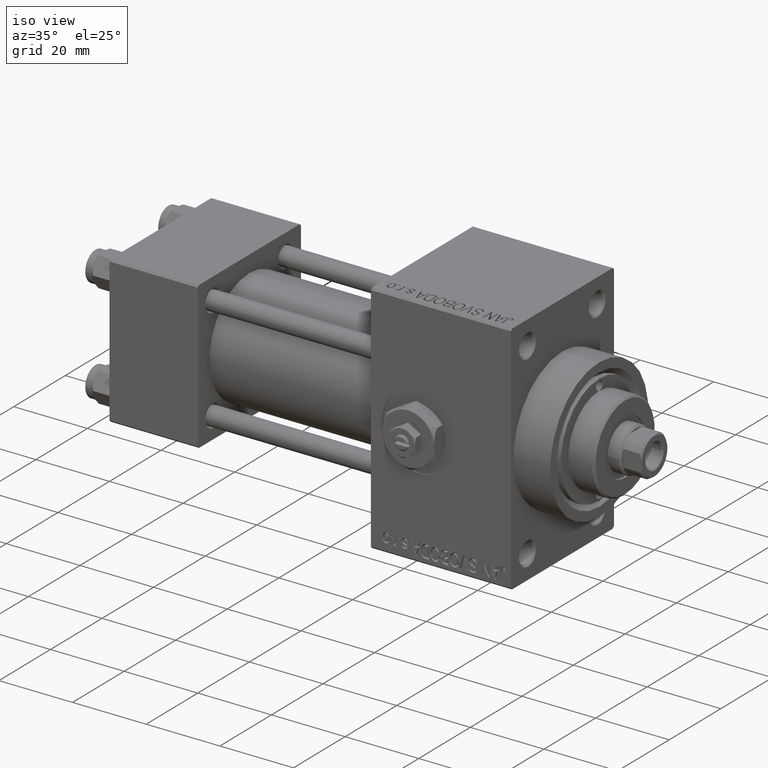
[diagram: clean part render]
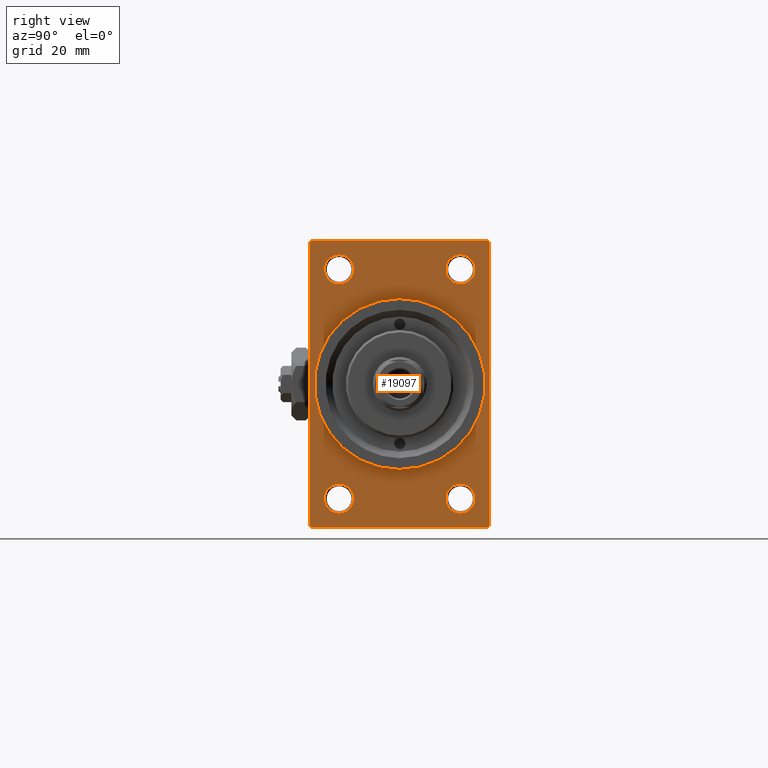
[diagram: tour spotlight — one face highlighted and labeled with its STEP entity id]
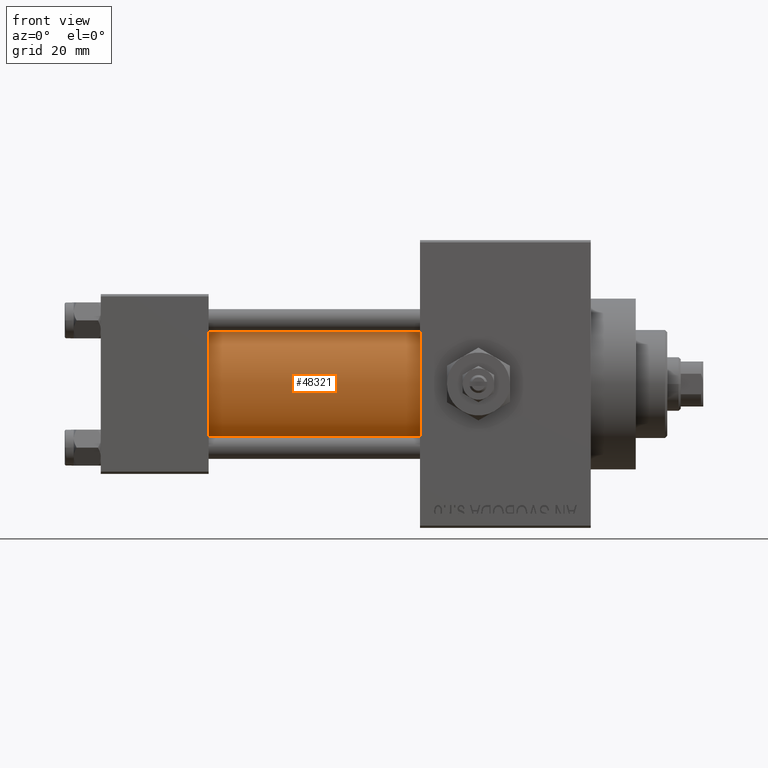
[diagram: tour spotlight — one face highlighted and labeled with its STEP entity id]
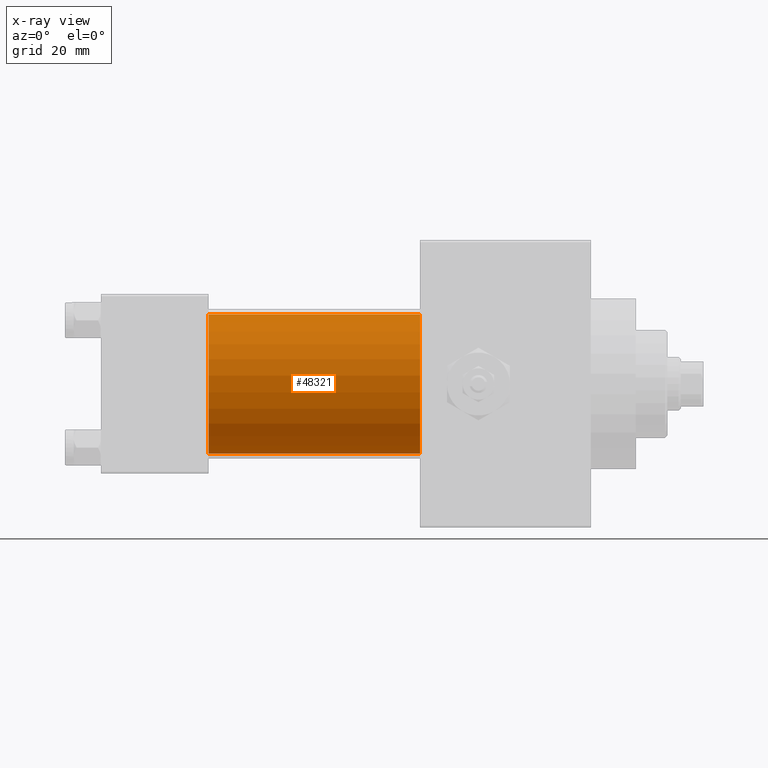
[diagram: x-ray of the same camera — body ghosted, this tour face saturated]
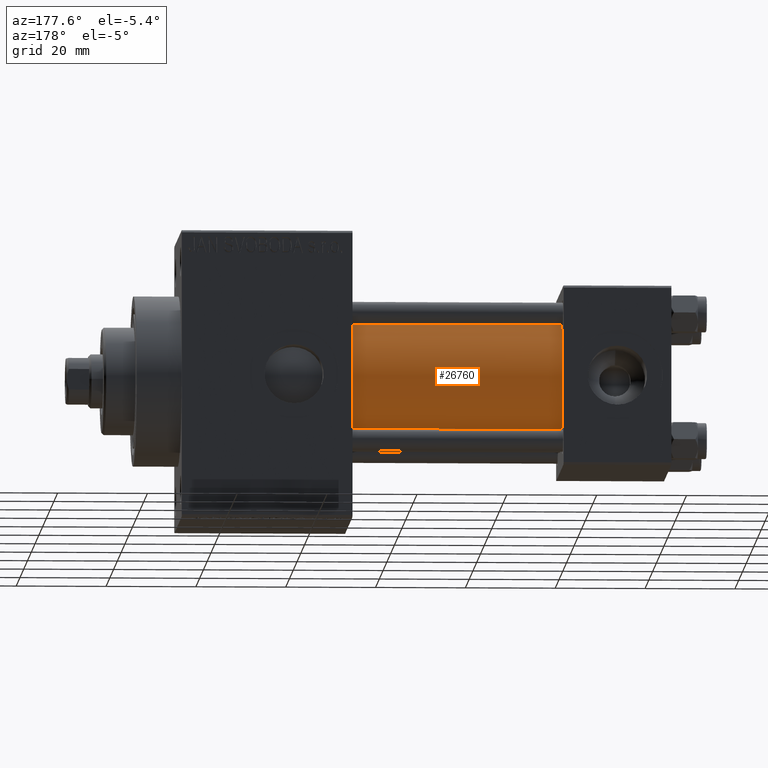
[diagram: tour spotlight — one face highlighted and labeled with its STEP entity id]
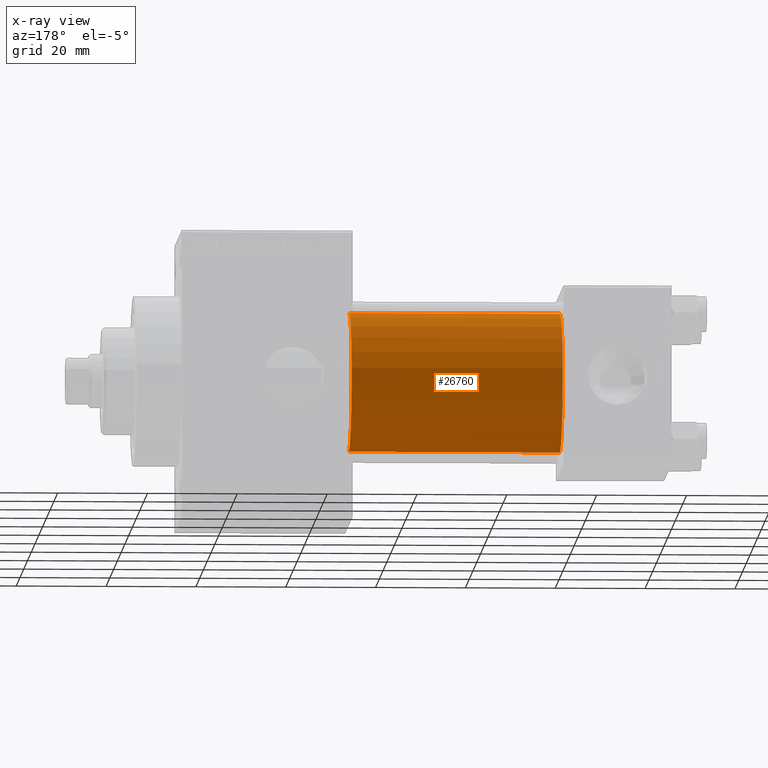
[diagram: x-ray of the same camera — body ghosted, this tour face saturated]
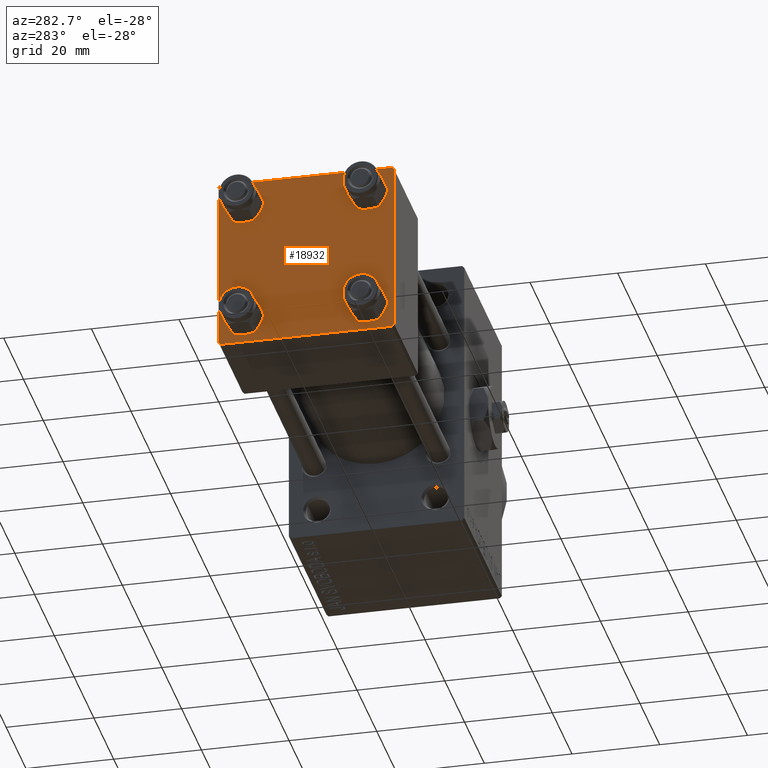
[diagram: tour spotlight — one face highlighted and labeled with its STEP entity id]
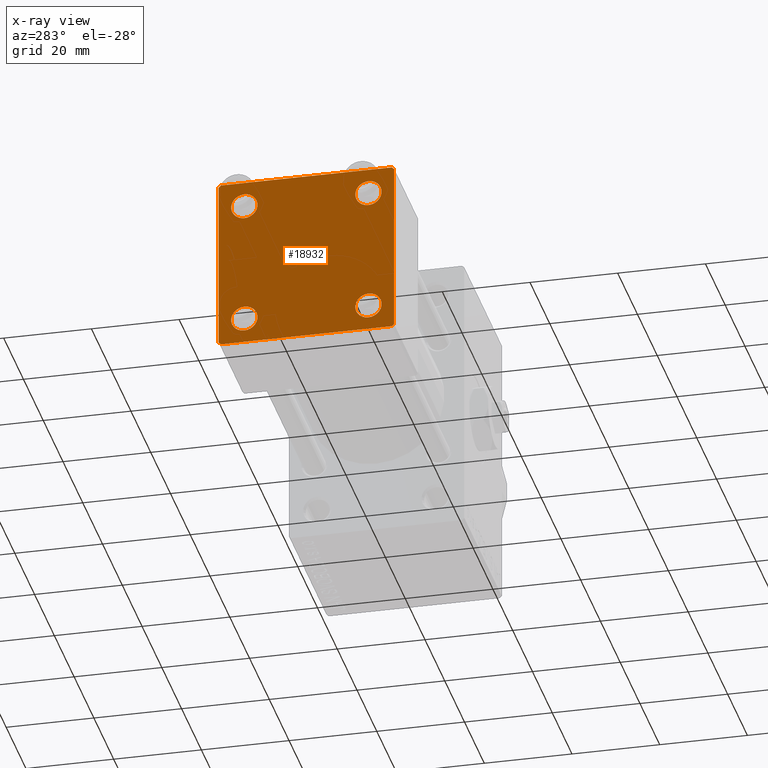
[diagram: x-ray of the same camera — body ghosted, this tour face saturated]
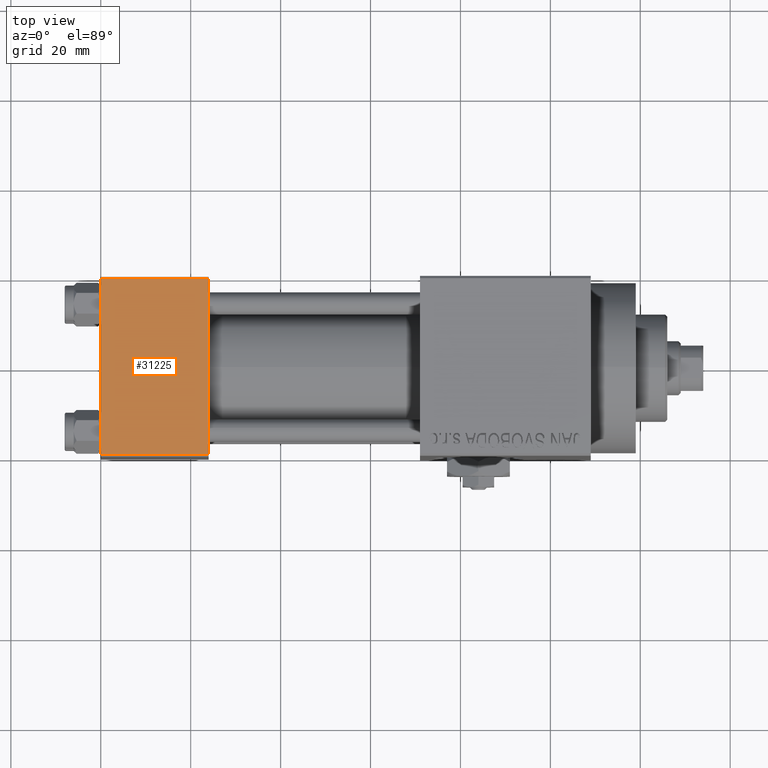
[diagram: tour spotlight — one face highlighted and labeled with its STEP entity id]
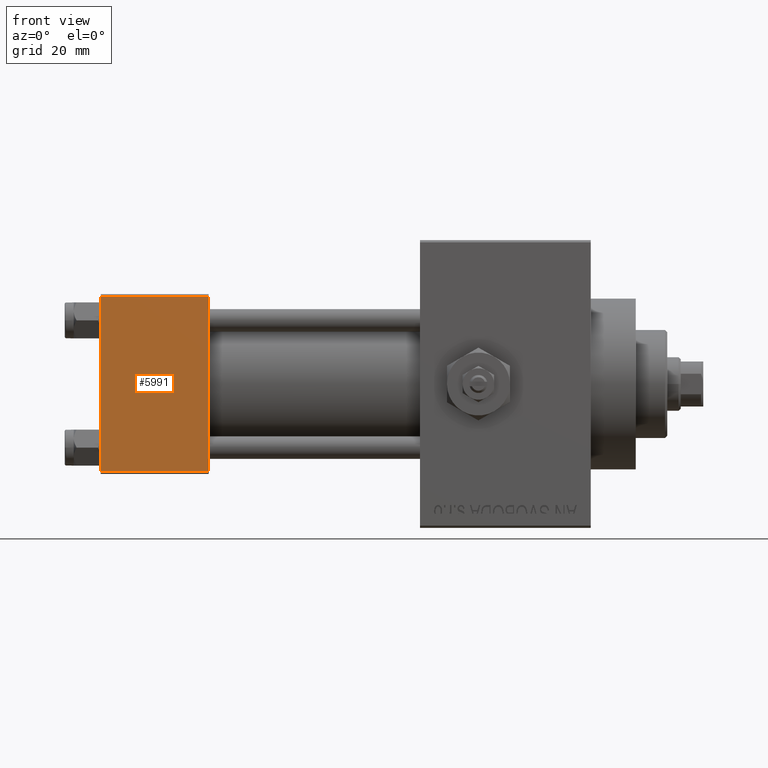
[diagram: tour spotlight — one face highlighted and labeled with its STEP entity id]
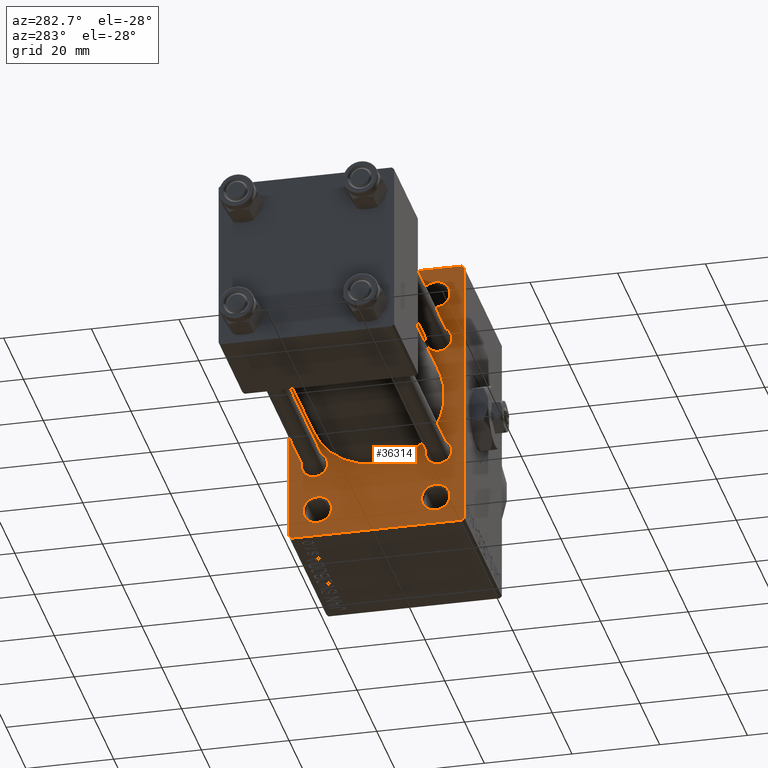
[diagram: tour spotlight — one face highlighted and labeled with its STEP entity id]
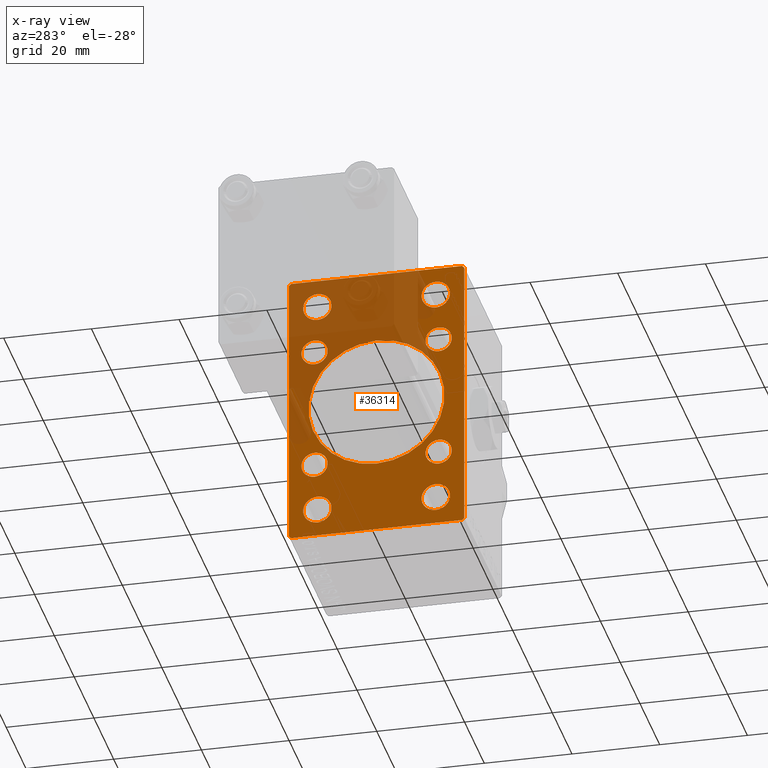
[diagram: x-ray of the same camera — body ghosted, this tour face saturated]
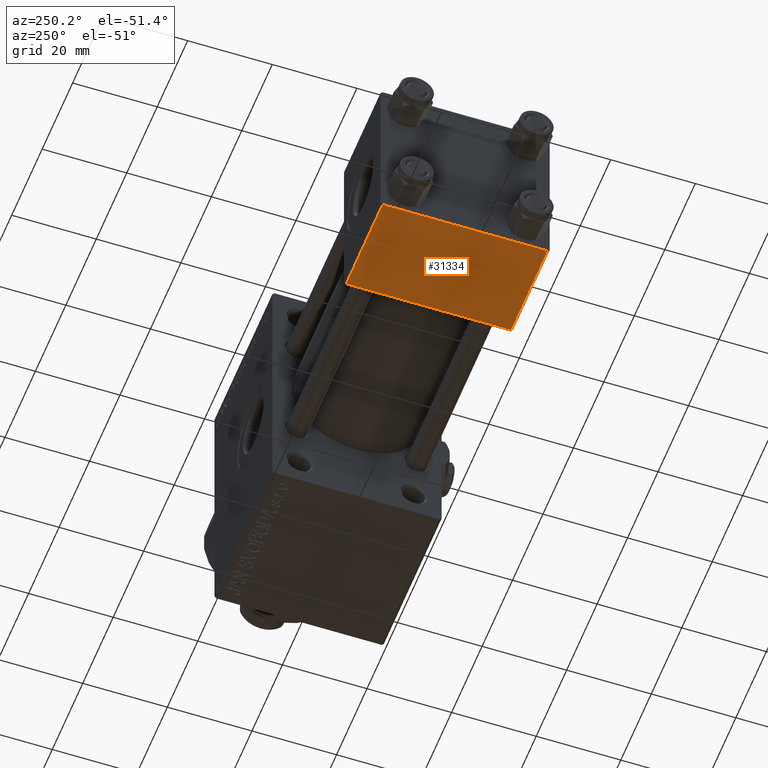
[diagram: tour spotlight — one face highlighted and labeled with its STEP entity id]
A machine part: a face-by-face anatomy tour. The part has 1158 B-rep faces; the first image is the clean iso view, then the 8 largest visible faces are spotlighted one at a time (largest first), each with its STEP entity span.

Face 1 — right view, entity #19097. In plain terms, the highlighted planar face has unit normal (-1, 0, 0).
Definition (entity closure, byte-faithful):
#38 = EDGE_LOOP ( 'NONE', ( #29748, #28795 ) ) ;
#78 = DIRECTION ( 'NONE',  ( 1.000000000000000000, 0.000000000000000000, 0.000000000000000000 ) ) ;
#381 = AXIS2_PLACEMENT_3D ( 'NONE', #14707, #78, #25840 ) ;
#687 = CIRCLE ( 'NONE', #6255, 3.249999999999961364 ) ;
#1353 = AXIS2_PLACEMENT_3D ( 'NONE', #10750, #40941, #25830 ) ;
#1458 = CARTESIAN_POINT ( 'NONE',  ( 109.0000000000000142, -13.50000000000000533, -22.24999999999999289 ) ) ;
#1728 = EDGE_CURVE ( 'NONE', #14627, #37049, #34187, .T. ) ;
#2409 = EDGE_CURVE ( 'NONE', #40316, #28733, #46675, .T. ) ;
#3276 = CARTESIAN_POINT ( 'NONE',  ( 109.0000000000000142, -20.00000000000000000, 31.49999999999997868 ) ) ;
#3299 = CARTESIAN_POINT ( 'NONE',  ( 109.0000000000000142, -13.50000000000000178, 25.50000000000000355 ) ) ;
#3395 = CARTESIAN_POINT ( 'NONE',  ( 109.0000000000000142, 20.00000000000000000, 32.00000000000000000 ) ) ;
#3846 = ORIENTED_EDGE ( 'NONE', *, *, #44243, .T. ) ;
#4077 = EDGE_CURVE ( 'NONE', #37049, #7958, #17858, .T. ) ;
#4120 = ORIENTED_EDGE ( 'NONE', *, *, #46542, .T. ) ;
#4692 = CIRCLE ( 'NONE', #11033, 3.250000000000002665 ) ;
#5666 = CARTESIAN_POINT ( 'NONE',  ( 109.0000000000000142, -20.00000000000000000, 31.49999999999997868 ) ) ;
#5725 = ORIENTED_EDGE ( 'NONE', *, *, #27700, .T. ) ;
#6255 = AXIS2_PLACEMENT_3D ( 'NONE', #15496, #8075, #23875 ) ;
#6426 = CARTESIAN_POINT ( 'NONE',  ( 109.0000000000000142, -20.00000000000000000, -31.49999999999997868 ) ) ;
#6539 = CARTESIAN_POINT ( 'NONE',  ( 109.0000000000000142, 20.00000000000000000, 32.00000000000000000 ) ) ;
#6641 = FACE_BOUND ( 'NONE', #38, .T. ) ;
#6888 = DIRECTION ( 'NONE',  ( -0.000000000000000000, 0.000000000000000000, 1.000000000000000000 ) ) ;
#7133 = PLANE ( 'NONE',  #47088 ) ;
#7232 = CARTESIAN_POINT ( 'NONE',  ( 109.0000000000000142, 13.49999999999999822, 28.74999999999996803 ) ) ;
#7352 = DIRECTION ( 'NONE',  ( -1.000000000000000000, -0.000000000000000000, -0.000000000000000000 ) ) ;
#7958 = VERTEX_POINT ( 'NONE', #6426 ) ;
#8075 = DIRECTION ( 'NONE',  ( -1.000000000000000000, -0.000000000000000000, -0.000000000000000000 ) ) ;
#8602 = EDGE_LOOP ( 'NONE', ( #33324, #16359 ) ) ;
#8878 = VERTEX_POINT ( 'NONE', #38251 ) ;
#9178 = EDGE_CURVE ( 'NONE', #24068, #8878, #31010, .T. ) ;
#9530 = AXIS2_PLACEMENT_3D ( 'NONE', #24870, #43933, #43192 ) ;
#9935 = VERTEX_POINT ( 'NONE', #47743 ) ;
#10110 = CARTESIAN_POINT ( 'NONE',  ( 109.0000000000000142, 13.49999999999999822, -28.75000000000000000 ) ) ;
#10172 = ORIENTED_EDGE ( 'NONE', *, *, #43466, .T. ) ;
#10308 = VECTOR ( 'NONE', #41622, 1000.000000000000114 ) ;
#10750 = CARTESIAN_POINT ( 'NONE',  ( 109.0000000000000142, 0.000000000000000000, 0.000000000000000000 ) ) ;
#11033 = AXIS2_PLACEMENT_3D ( 'NONE', #3299, #29292, #45115 ) ;
#11067 = DIRECTION ( 'NONE',  ( 0.000000000000000000, -0.7071067811865474617, 0.7071067811865474617 ) ) ;
#11613 = VECTOR ( 'NONE', #43686, 1000.000000000000114 ) ;
#12938 = ORIENTED_EDGE ( 'NONE', *, *, #4077, .T. ) ;
#13268 = AXIS2_PLACEMENT_3D ( 'NONE', #26142, #7352, #34538 ) ;
#13451 = VERTEX_POINT ( 'NONE', #24148 ) ;
#13580 = ORIENTED_EDGE ( 'NONE', *, *, #48881, .T. ) ;
#13750 = VERTEX_POINT ( 'NONE', #17675 ) ;
#13858 = CIRCLE ( 'NONE', #41530, 3.250000000000002665 ) ;
#14627 = VERTEX_POINT ( 'NONE', #47610 ) ;
#14707 = CARTESIAN_POINT ( 'NONE',  ( 109.0000000000000142, 0.000000000000000000, 0.000000000000000000 ) ) ;
#15056 = CARTESIAN_POINT ( 'NONE',  ( 109.0000000000000142, -13.50000000000000178, 28.75000000000000355 ) ) ;
#15109 = EDGE_LOOP ( 'NONE', ( #20887, #32080 ) ) ;
#15244 = VERTEX_POINT ( 'NONE', #1458 ) ;
#15496 = CARTESIAN_POINT ( 'NONE',  ( 109.0000000000000142, 13.49999999999999822, 25.50000000000000355 ) ) ;
#15513 = VERTEX_POINT ( 'NONE', #15056 ) ;
#15939 = VECTOR ( 'NONE', #45856, 1000.000000000000000 ) ;
#15990 = DIRECTION ( 'NONE',  ( 0.000000000000000000, 0.000000000000000000, -1.000000000000000000 ) ) ;
#16233 = DIRECTION ( 'NONE',  ( -1.000000000000000000, -0.000000000000000000, -0.000000000000000000 ) ) ;
#16359 = ORIENTED_EDGE ( 'NONE', *, *, #26401, .F. ) ;
#16912 = LINE ( 'NONE', #39448, #47064 ) ;
#16976 = EDGE_CURVE ( 'NONE', #46430, #24310, #34372, .T. ) ;
#17031 = VERTEX_POINT ( 'NONE', #46590 ) ;
#17675 = CARTESIAN_POINT ( 'NONE',  ( 109.0000000000000142, 20.00000000000000000, -31.49999999999998579 ) ) ;
#17704 = CARTESIAN_POINT ( 'NONE',  ( 109.0000000000000142, 20.00000000000000000, -31.49999999999998579 ) ) ;
#17858 = LINE ( 'NONE', #47796, #27735 ) ;
#18002 = EDGE_CURVE ( 'NONE', #13451, #24416, #44706, .T. ) ;
#18028 = FACE_BOUND ( 'NONE', #8602, .T. ) ;
#18057 = ORIENTED_EDGE ( 'NONE', *, *, #25063, .F. ) ;
#18213 = CARTESIAN_POINT ( 'NONE',  ( 109.0000000000000142, -13.50000000000000533, -28.74999999999999645 ) ) ;
#18274 = FACE_BOUND ( 'NONE', #15109, .T. ) ;
#19097 = ADVANCED_FACE ( 'NONE', ( #18274, #48935, #41515, #6641, #18028, #25676 ), #7133, .F. ) ;
#19705 = CARTESIAN_POINT ( 'NONE',  ( 109.0000000000000142, 0.000000000000000000, 19.00000000000000000 ) ) ;
#20135 = DIRECTION ( 'NONE',  ( 0.000000000000000000, 0.7071067811865426878, -0.7071067811865524577 ) ) ;
#20307 = DIRECTION ( 'NONE',  ( 0.000000000000000000, 0.000000000000000000, 1.000000000000000000 ) ) ;
#20605 = CARTESIAN_POINT ( 'NONE',  ( 109.0000000000000142, 2.326828918379970970E-15, -19.00000000000000000 ) ) ;
#20776 = VERTEX_POINT ( 'NONE', #18213 ) ;
#20887 = ORIENTED_EDGE ( 'NONE', *, *, #30551, .T. ) ;
#21120 = CARTESIAN_POINT ( 'NONE',  ( 109.0000000000000142, 13.49999999999999822, -25.50000000000000000 ) ) ;
#21700 = DIRECTION ( 'NONE',  ( -1.000000000000000000, -0.000000000000000000, -0.000000000000000000 ) ) ;
#21947 = VECTOR ( 'NONE', #11067, 1000.000000000000114 ) ;
#23875 = DIRECTION ( 'NONE',  ( 0.000000000000000000, 0.000000000000000000, 1.000000000000000000 ) ) ;
#24068 = VERTEX_POINT ( 'NONE', #27064 ) ;
#24148 = CARTESIAN_POINT ( 'NONE',  ( 109.0000000000000142, 13.49999999999999822, 22.25000000000004263 ) ) ;
#24310 = VERTEX_POINT ( 'NONE', #20605 ) ;
#24416 = VERTEX_POINT ( 'NONE', #7232 ) ;
#24870 = CARTESIAN_POINT ( 'NONE',  ( 109.0000000000000142, 13.49999999999999822, -25.50000000000000000 ) ) ;
#25063 = EDGE_CURVE ( 'NONE', #17031, #13750, #44484, .T. ) ;
#25289 = EDGE_CURVE ( 'NONE', #15513, #32064, #31397, .T. ) ;
#25332 = LINE ( 'NONE', #6539, #40792 ) ;
#25420 = CARTESIAN_POINT ( 'NONE',  ( 109.0000000000000142, -13.50000000000000533, -25.49999999999999645 ) ) ;
#25676 = FACE_OUTER_BOUND ( 'NONE', #40021, .T. ) ;
#25830 = DIRECTION ( 'NONE',  ( 0.000000000000000000, 0.000000000000000000, -1.000000000000000000 ) ) ;
#25840 = DIRECTION ( 'NONE',  ( 0.000000000000000000, 0.000000000000000000, -1.000000000000000000 ) ) ;
#26142 = CARTESIAN_POINT ( 'NONE',  ( 109.0000000000000142, -13.50000000000000533, -25.49999999999999645 ) ) ;
#26401 = EDGE_CURVE ( 'NONE', #24310, #46430, #29857, .T. ) ;
#26483 = ORIENTED_EDGE ( 'NONE', *, *, #9178, .F. ) ;
#27034 = EDGE_CURVE ( 'NONE', #15244, #20776, #44120, .T. ) ;
#27064 = CARTESIAN_POINT ( 'NONE',  ( 109.0000000000000142, 19.49999999999998579, -32.00000000000000000 ) ) ;
#27700 = EDGE_CURVE ( 'NONE', #20776, #15244, #48854, .T. ) ;
#27702 = ORIENTED_EDGE ( 'NONE', *, *, #45153, .T. ) ;
#27735 = VECTOR ( 'NONE', #28998, 1000.000000000000000 ) ;
#28188 = ORIENTED_EDGE ( 'NONE', *, *, #2409, .T. ) ;
#28733 = VERTEX_POINT ( 'NONE', #10110 ) ;
#28795 = ORIENTED_EDGE ( 'NONE', *, *, #32219, .T. ) ;
#28998 = DIRECTION ( 'NONE',  ( 0.000000000000000000, 0.000000000000000000, -1.000000000000000000 ) ) ;
#29058 = DIRECTION ( 'NONE',  ( 0.000000000000000000, -1.000000000000000000, -1.734723475976807094E-16 ) ) ;
#29121 = ORIENTED_EDGE ( 'NONE', *, *, #27034, .T. ) ;
#29292 = DIRECTION ( 'NONE',  ( -1.000000000000000000, -0.000000000000000000, -0.000000000000000000 ) ) ;
#29748 = ORIENTED_EDGE ( 'NONE', *, *, #18002, .T. ) ;
#29773 = EDGE_LOOP ( 'NONE', ( #5725, #29121 ) ) ;
#29857 = CIRCLE ( 'NONE', #1353, 19.00000000000000000 ) ;
#30551 = EDGE_CURVE ( 'NONE', #32064, #15513, #4692, .T. ) ;
#31010 = LINE ( 'NONE', #41661, #15939 ) ;
#31329 = DIRECTION ( 'NONE',  ( 0.000000000000000000, 0.000000000000000000, 1.000000000000000000 ) ) ;
#31397 = CIRCLE ( 'NONE', #48781, 3.250000000000002665 ) ;
#31791 = ORIENTED_EDGE ( 'NONE', *, *, #1728, .T. ) ;
#32064 = VERTEX_POINT ( 'NONE', #44726 ) ;
#32080 = ORIENTED_EDGE ( 'NONE', *, *, #25289, .T. ) ;
#32219 = EDGE_CURVE ( 'NONE', #24416, #13451, #687, .T. ) ;
#33115 = DIRECTION ( 'NONE',  ( -1.000000000000000000, 0.000000000000000000, -0.000000000000000000 ) ) ;
#33324 = ORIENTED_EDGE ( 'NONE', *, *, #16976, .F. ) ;
#33837 = AXIS2_PLACEMENT_3D ( 'NONE', #25420, #21700, #46530 ) ;
#34053 = LINE ( 'NONE', #37783, #21947 ) ;
#34187 = LINE ( 'NONE', #3276, #10308 ) ;
#34372 = CIRCLE ( 'NONE', #381, 19.00000000000000000 ) ;
#34538 = DIRECTION ( 'NONE',  ( 0.000000000000000000, 0.000000000000000000, 1.000000000000000000 ) ) ;
#35159 = CARTESIAN_POINT ( 'NONE',  ( 109.0000000000000142, -13.50000000000000178, 25.50000000000000355 ) ) ;
#35235 = DIRECTION ( 'NONE',  ( 0.000000000000000000, 0.000000000000000000, 1.000000000000000000 ) ) ;
#35280 = CARTESIAN_POINT ( 'NONE',  ( 109.0000000000000142, 13.49999999999999822, 25.50000000000000355 ) ) ;
#35955 = EDGE_LOOP ( 'NONE', ( #3846, #28188 ) ) ;
#36482 = CARTESIAN_POINT ( 'NONE',  ( 109.0000000000000142, 13.49999999999999822, -22.24999999999999645 ) ) ;
#36789 = AXIS2_PLACEMENT_3D ( 'NONE', #35280, #16233, #31329 ) ;
#36920 = VECTOR ( 'NONE', #15990, 1000.000000000000000 ) ;
#37049 = VERTEX_POINT ( 'NONE', #5666 ) ;
#37329 = CARTESIAN_POINT ( 'NONE',  ( 109.0000000000000142, 0.000000000000000000, 0.000000000000000000 ) ) ;
#37783 = CARTESIAN_POINT ( 'NONE',  ( 109.0000000000000142, 19.49999999999998579, 32.00000000000000000 ) ) ;
#38251 = CARTESIAN_POINT ( 'NONE',  ( 109.0000000000000142, -19.49999999999998579, -32.00000000000000000 ) ) ;
#39448 = CARTESIAN_POINT ( 'NONE',  ( 109.0000000000000142, -19.49999999999998579, -32.00000000000000000 ) ) ;
#40021 = EDGE_LOOP ( 'NONE', ( #12938, #10172, #26483, #4120, #18057, #13580, #27702, #31791 ) ) ;
#40316 = VERTEX_POINT ( 'NONE', #36482 ) ;
#40792 = VECTOR ( 'NONE', #29058, 1000.000000000000000 ) ;
#40941 = DIRECTION ( 'NONE',  ( 1.000000000000000000, 0.000000000000000000, 0.000000000000000000 ) ) ;
#41515 = FACE_BOUND ( 'NONE', #35955, .T. ) ;
#41530 = AXIS2_PLACEMENT_3D ( 'NONE', #21120, #46621, #35235 ) ;
#41622 = DIRECTION ( 'NONE',  ( -0.000000000000000000, -0.7071067811865474617, -0.7071067811865474617 ) ) ;
#41661 = CARTESIAN_POINT ( 'NONE',  ( 109.0000000000000142, 20.00000000000000000, -32.00000000000000000 ) ) ;
#42831 = DIRECTION ( 'NONE',  ( -1.000000000000000000, -0.000000000000000000, -0.000000000000000000 ) ) ;
#43192 = DIRECTION ( 'NONE',  ( 0.000000000000000000, 0.000000000000000000, 1.000000000000000000 ) ) ;
#43466 = EDGE_CURVE ( 'NONE', #7958, #8878, #16912, .T. ) ;
#43686 = DIRECTION ( 'NONE',  ( -0.000000000000000000, 0.7071067811865474617, 0.7071067811865474617 ) ) ;
#43933 = DIRECTION ( 'NONE',  ( -1.000000000000000000, -0.000000000000000000, -0.000000000000000000 ) ) ;
#44120 = CIRCLE ( 'NONE', #13268, 3.250000000000002665 ) ;
#44178 = LINE ( 'NONE', #17704, #11613 ) ;
#44243 = EDGE_CURVE ( 'NONE', #28733, #40316, #13858, .T. ) ;
#44484 = LINE ( 'NONE', #3395, #36920 ) ;
#44706 = CIRCLE ( 'NONE', #36789, 3.249999999999961364 ) ;
#44726 = CARTESIAN_POINT ( 'NONE',  ( 109.0000000000000142, -13.50000000000000178, 22.25000000000000000 ) ) ;
#45115 = DIRECTION ( 'NONE',  ( 0.000000000000000000, 0.000000000000000000, 1.000000000000000000 ) ) ;
#45153 = EDGE_CURVE ( 'NONE', #9935, #14627, #25332, .T. ) ;
#45856 = DIRECTION ( 'NONE',  ( 0.000000000000000000, -1.000000000000000000, 0.000000000000000000 ) ) ;
#46430 = VERTEX_POINT ( 'NONE', #19705 ) ;
#46530 = DIRECTION ( 'NONE',  ( 0.000000000000000000, 0.000000000000000000, 1.000000000000000000 ) ) ;
#46542 = EDGE_CURVE ( 'NONE', #24068, #13750, #44178, .T. ) ;
#46590 = CARTESIAN_POINT ( 'NONE',  ( 109.0000000000000142, 20.00000000000000000, 31.49999999999998579 ) ) ;
#46621 = DIRECTION ( 'NONE',  ( -1.000000000000000000, -0.000000000000000000, -0.000000000000000000 ) ) ;
#46675 = CIRCLE ( 'NONE', #9530, 3.250000000000002665 ) ;
#47064 = VECTOR ( 'NONE', #20135, 1000.000000000000000 ) ;
#47088 = AXIS2_PLACEMENT_3D ( 'NONE', #37329, #33115, #6888 ) ;
#47610 = CARTESIAN_POINT ( 'NONE',  ( 109.0000000000000142, -19.49999999999998579, 31.99999999999999289 ) ) ;
#47743 = CARTESIAN_POINT ( 'NONE',  ( 109.0000000000000142, 19.49999999999998579, 32.00000000000000000 ) ) ;
#47796 = CARTESIAN_POINT ( 'NONE',  ( 109.0000000000000142, -20.00000000000000000, 31.99999999999999289 ) ) ;
#48781 = AXIS2_PLACEMENT_3D ( 'NONE', #35159, #42831, #20307 ) ;
#48854 = CIRCLE ( 'NONE', #33837, 3.250000000000002665 ) ;
#48881 = EDGE_CURVE ( 'NONE', #17031, #9935, #34053, .T. ) ;
#48935 = FACE_BOUND ( 'NONE', #29773, .T. ) ;

Face 2 — front view, entity #48321. An x-ray twin of the same camera follows (body ghosted, this face saturated) — the face is partly hidden behind the body. In plain terms, the highlighted cylindrical surface (partial cylindrical patch) has radius 15.5 mm, axis along (-1, -0, -0).
Definition (entity closure, byte-faithful):
#1240 = DIRECTION ( 'NONE',  ( 0.000000000000000000, 0.000000000000000000, -1.000000000000000000 ) ) ;
#1492 = LINE ( 'NONE', #20556, #22910 ) ;
#5234 = AXIS2_PLACEMENT_3D ( 'NONE', #13556, #11557, #15503 ) ;
#5613 = ORIENTED_EDGE ( 'NONE', *, *, #25007, .T. ) ;
#5841 = ORIENTED_EDGE ( 'NONE', *, *, #33864, .F. ) ;
#7097 = EDGE_LOOP ( 'NONE', ( #45825, #5841, #5613, #27025 ) ) ;
#7516 = VERTEX_POINT ( 'NONE', #19435 ) ;
#9425 = DIRECTION ( 'NONE',  ( 1.000000000000000000, 0.000000000000000000, 0.000000000000000000 ) ) ;
#9570 = VERTEX_POINT ( 'NONE', #19564 ) ;
#10057 = AXIS2_PLACEMENT_3D ( 'NONE', #32354, #47450, #13549 ) ;
#11557 = DIRECTION ( 'NONE',  ( 1.000000000000000000, 0.000000000000000000, 0.000000000000000000 ) ) ;
#13373 = AXIS2_PLACEMENT_3D ( 'NONE', #43320, #9425, #1240 ) ;
#13549 = DIRECTION ( 'NONE',  ( 0.000000000000000000, 0.000000000000000000, 1.000000000000000000 ) ) ;
#13556 = CARTESIAN_POINT ( 'NONE',  ( 24.00000000000000000, -2.602085213965210642E-15, 0.000000000000000000 ) ) ;
#14533 = CARTESIAN_POINT ( 'NONE',  ( 71.00000000000001421, -2.602085213965210642E-15, 15.50000000000000000 ) ) ;
#15503 = DIRECTION ( 'NONE',  ( 0.000000000000000000, 0.000000000000000000, 1.000000000000000000 ) ) ;
#19435 = CARTESIAN_POINT ( 'NONE',  ( 71.00000000000001421, -7.038826752868131828E-16, -15.50000000000000000 ) ) ;
#19564 = CARTESIAN_POINT ( 'NONE',  ( 24.00000000000000000, -7.038826752868131828E-16, -15.50000000000000000 ) ) ;
#20556 = CARTESIAN_POINT ( 'NONE',  ( 71.00000000000001421, -7.038826752868131828E-16, -15.50000000000000000 ) ) ;
#21457 = CYLINDRICAL_SURFACE ( 'NONE', #10057, 15.50000000000000000 ) ;
#22196 = LINE ( 'NONE', #14533, #45606 ) ;
#22910 = VECTOR ( 'NONE', #42349, 1000.000000000000000 ) ;
#25007 = EDGE_CURVE ( 'NONE', #34014, #40360, #22196, .T. ) ;
#25167 = FACE_OUTER_BOUND ( 'NONE', #7097, .T. ) ;
#27025 = ORIENTED_EDGE ( 'NONE', *, *, #46347, .T. ) ;
#31402 = EDGE_CURVE ( 'NONE', #7516, #9570, #1492, .T. ) ;
#32354 = CARTESIAN_POINT ( 'NONE',  ( 71.00000000000001421, -2.602085213965210642E-15, 0.000000000000000000 ) ) ;
#32905 = CIRCLE ( 'NONE', #5234, 15.50000000000000000 ) ;
#33582 = DIRECTION ( 'NONE',  ( -1.000000000000000000, -0.000000000000000000, -0.000000000000000000 ) ) ;
#33864 = EDGE_CURVE ( 'NONE', #34014, #7516, #34714, .T. ) ;
#34014 = VERTEX_POINT ( 'NONE', #34127 ) ;
#34127 = CARTESIAN_POINT ( 'NONE',  ( 71.00000000000001421, -2.602085213965210642E-15, 15.50000000000000000 ) ) ;
#34714 = CIRCLE ( 'NONE', #13373, 15.50000000000000000 ) ;
#40360 = VERTEX_POINT ( 'NONE', #47111 ) ;
#42349 = DIRECTION ( 'NONE',  ( -1.000000000000000000, -0.000000000000000000, -0.000000000000000000 ) ) ;
#43320 = CARTESIAN_POINT ( 'NONE',  ( 71.00000000000001421, -2.602085213965210642E-15, 0.000000000000000000 ) ) ;
#45606 = VECTOR ( 'NONE', #33582, 1000.000000000000000 ) ;
#45825 = ORIENTED_EDGE ( 'NONE', *, *, #31402, .F. ) ;
#46347 = EDGE_CURVE ( 'NONE', #40360, #9570, #32905, .T. ) ;
#47111 = CARTESIAN_POINT ( 'NONE',  ( 24.00000000000000000, -2.602085213965210642E-15, 15.50000000000000000 ) ) ;
#47450 = DIRECTION ( 'NONE',  ( -1.000000000000000000, -0.000000000000000000, -0.000000000000000000 ) ) ;
#48321 = ADVANCED_FACE ( 'NONE', ( #25167 ), #21457, .T. ) ;

Face 3 — auxiliary view, entity #26760. An x-ray twin of the same camera follows (body ghosted, this face saturated) — the face is partly hidden behind the body. In plain terms, the highlighted cylindrical surface (partial cylindrical patch) has radius 15.5 mm, axis along (-1, -0, -0).
Definition (entity closure, byte-faithful):
#1492 = LINE ( 'NONE', #20556, #22910 ) ;
#4792 = ORIENTED_EDGE ( 'NONE', *, *, #31402, .T. ) ;
#6919 = CYLINDRICAL_SURFACE ( 'NONE', #30666, 15.50000000000000000 ) ;
#7516 = VERTEX_POINT ( 'NONE', #19435 ) ;
#7873 = CIRCLE ( 'NONE', #26056, 15.50000000000000000 ) ;
#8864 = ORIENTED_EDGE ( 'NONE', *, *, #34059, .T. ) ;
#9067 = EDGE_LOOP ( 'NONE', ( #15313, #4792, #8864, #42272 ) ) ;
#9570 = VERTEX_POINT ( 'NONE', #19564 ) ;
#12195 = CIRCLE ( 'NONE', #44600, 15.50000000000000000 ) ;
#14533 = CARTESIAN_POINT ( 'NONE',  ( 71.00000000000001421, -2.602085213965210642E-15, 15.50000000000000000 ) ) ;
#14798 = EDGE_CURVE ( 'NONE', #7516, #34014, #12195, .T. ) ;
#15313 = ORIENTED_EDGE ( 'NONE', *, *, #14798, .F. ) ;
#19435 = CARTESIAN_POINT ( 'NONE',  ( 71.00000000000001421, -7.038826752868131828E-16, -15.50000000000000000 ) ) ;
#19564 = CARTESIAN_POINT ( 'NONE',  ( 24.00000000000000000, -7.038826752868131828E-16, -15.50000000000000000 ) ) ;
#19771 = DIRECTION ( 'NONE',  ( 1.000000000000000000, 0.000000000000000000, 0.000000000000000000 ) ) ;
#20556 = CARTESIAN_POINT ( 'NONE',  ( 71.00000000000001421, -7.038826752868131828E-16, -15.50000000000000000 ) ) ;
#22196 = LINE ( 'NONE', #14533, #45606 ) ;
#22345 = DIRECTION ( 'NONE',  ( 1.000000000000000000, 0.000000000000000000, 0.000000000000000000 ) ) ;
#22477 = CARTESIAN_POINT ( 'NONE',  ( 71.00000000000001421, -2.602085213965210642E-15, 0.000000000000000000 ) ) ;
#22910 = VECTOR ( 'NONE', #42349, 1000.000000000000000 ) ;
#25007 = EDGE_CURVE ( 'NONE', #34014, #40360, #22196, .T. ) ;
#25952 = DIRECTION ( 'NONE',  ( -1.000000000000000000, -0.000000000000000000, -0.000000000000000000 ) ) ;
#26056 = AXIS2_PLACEMENT_3D ( 'NONE', #45036, #19771, #48739 ) ;
#26760 = ADVANCED_FACE ( 'NONE', ( #37836 ), #6919, .T. ) ;
#26793 = CARTESIAN_POINT ( 'NONE',  ( 71.00000000000001421, -2.602085213965210642E-15, 0.000000000000000000 ) ) ;
#30666 = AXIS2_PLACEMENT_3D ( 'NONE', #22477, #25952, #40821 ) ;
#31402 = EDGE_CURVE ( 'NONE', #7516, #9570, #1492, .T. ) ;
#33582 = DIRECTION ( 'NONE',  ( -1.000000000000000000, -0.000000000000000000, -0.000000000000000000 ) ) ;
#34014 = VERTEX_POINT ( 'NONE', #34127 ) ;
#34059 = EDGE_CURVE ( 'NONE', #9570, #40360, #7873, .T. ) ;
#34127 = CARTESIAN_POINT ( 'NONE',  ( 71.00000000000001421, -2.602085213965210642E-15, 15.50000000000000000 ) ) ;
#37701 = DIRECTION ( 'NONE',  ( 0.000000000000000000, 0.000000000000000000, -1.000000000000000000 ) ) ;
#37836 = FACE_OUTER_BOUND ( 'NONE', #9067, .T. ) ;
#40360 = VERTEX_POINT ( 'NONE', #47111 ) ;
#40821 = DIRECTION ( 'NONE',  ( 0.000000000000000000, 0.000000000000000000, 1.000000000000000000 ) ) ;
#42272 = ORIENTED_EDGE ( 'NONE', *, *, #25007, .F. ) ;
#42349 = DIRECTION ( 'NONE',  ( -1.000000000000000000, -0.000000000000000000, -0.000000000000000000 ) ) ;
#44600 = AXIS2_PLACEMENT_3D ( 'NONE', #26793, #22345, #37701 ) ;
#45036 = CARTESIAN_POINT ( 'NONE',  ( 24.00000000000000000, -2.602085213965210642E-15, 0.000000000000000000 ) ) ;
#45606 = VECTOR ( 'NONE', #33582, 1000.000000000000000 ) ;
#47111 = CARTESIAN_POINT ( 'NONE',  ( 24.00000000000000000, -2.602085213965210642E-15, 15.50000000000000000 ) ) ;
#48739 = DIRECTION ( 'NONE',  ( 0.000000000000000000, 0.000000000000000000, 1.000000000000000000 ) ) ;

Face 4 — auxiliary view, entity #18932. An x-ray twin of the same camera follows (body ghosted, this face saturated) — the face is partly hidden behind the body. In plain terms, the highlighted planar face has unit normal (-1, 0, 0).
Definition (entity closure, byte-faithful):
#50 = ORIENTED_EDGE ( 'NONE', *, *, #33283, .T. ) ;
#263 = CARTESIAN_POINT ( 'NONE',  ( 0.000000000000000000, -20.00000000000000000, -19.49999999999999645 ) ) ;
#547 = VERTEX_POINT ( 'NONE', #16763 ) ;
#903 = VERTEX_POINT ( 'NONE', #263 ) ;
#1069 = CARTESIAN_POINT ( 'NONE',  ( -0.000000000000000000, 19.75000000000013500, 19.74999999999986144 ) ) ;
#1436 = ORIENTED_EDGE ( 'NONE', *, *, #15867, .T. ) ;
#1476 = LINE ( 'NONE', #8677, #44493 ) ;
#1726 = VERTEX_POINT ( 'NONE', #33944 ) ;
#2010 = VERTEX_POINT ( 'NONE', #38583 ) ;
#2210 = CARTESIAN_POINT ( 'NONE',  ( 0.000000000000000000, 20.00000000000000000, -19.50000000000002132 ) ) ;
#2314 = CIRCLE ( 'NONE', #6289, 2.999999999999983569 ) ;
#2466 = DIRECTION ( 'NONE',  ( 1.000000000000000000, 0.000000000000000000, 0.000000000000000000 ) ) ;
#2520 = CIRCLE ( 'NONE', #12825, 2.999999999999983569 ) ;
#3457 = DIRECTION ( 'NONE',  ( 0.000000000000000000, 0.000000000000000000, 1.000000000000000000 ) ) ;
#4507 = CARTESIAN_POINT ( 'NONE',  ( 0.000000000000000000, -14.14999999999999503, 14.15000000000000391 ) ) ;
#4682 = FACE_BOUND ( 'NONE', #16241, .T. ) ;
#5232 = VERTEX_POINT ( 'NONE', #31915 ) ;
#5529 = EDGE_LOOP ( 'NONE', ( #1436, #9588 ) ) ;
#5698 = LINE ( 'NONE', #27476, #5739 ) ;
#5739 = VECTOR ( 'NONE', #42576, 1000.000000000000114 ) ;
#6038 = DIRECTION ( 'NONE',  ( -0.000000000000000000, -0.7071067811865524577, -0.7071067811865426878 ) ) ;
#6163 = VERTEX_POINT ( 'NONE', #40315 ) ;
#6289 = AXIS2_PLACEMENT_3D ( 'NONE', #42526, #23702, #18676 ) ;
#6306 = EDGE_LOOP ( 'NONE', ( #35067, #10437, #40064, #45122, #23481, #18713, #21785, #7452 ) ) ;
#6536 = CIRCLE ( 'NONE', #48389, 2.999999999999983569 ) ;
#7179 = DIRECTION ( 'NONE',  ( 1.000000000000000000, 0.000000000000000000, 0.000000000000000000 ) ) ;
#7452 = ORIENTED_EDGE ( 'NONE', *, *, #18263, .T. ) ;
#8304 = VECTOR ( 'NONE', #31633, 1000.000000000000000 ) ;
#8543 = ORIENTED_EDGE ( 'NONE', *, *, #9380, .T. ) ;
#8677 = CARTESIAN_POINT ( 'NONE',  ( 0.000000000000000000, 20.00000000000000000, 20.00000000000000000 ) ) ;
#9380 = EDGE_CURVE ( 'NONE', #1726, #5232, #2520, .T. ) ;
#9588 = ORIENTED_EDGE ( 'NONE', *, *, #37666, .T. ) ;
#9828 = ORIENTED_EDGE ( 'NONE', *, *, #23395, .T. ) ;
#9977 = AXIS2_PLACEMENT_3D ( 'NONE', #42297, #30682, #23478 ) ;
#10437 = ORIENTED_EDGE ( 'NONE', *, *, #21677, .T. ) ;
#10778 = EDGE_CURVE ( 'NONE', #36849, #25753, #5698, .T. ) ;
#10794 = EDGE_CURVE ( 'NONE', #37354, #25753, #1476, .T. ) ;
#11097 = AXIS2_PLACEMENT_3D ( 'NONE', #18389, #42052, #40663 ) ;
#11521 = CARTESIAN_POINT ( 'NONE',  ( 0.000000000000000000, -14.14999999999999503, 17.14999999999998792 ) ) ;
#12490 = DIRECTION ( 'NONE',  ( 0.000000000000000000, 0.000000000000000000, 1.000000000000000000 ) ) ;
#12825 = AXIS2_PLACEMENT_3D ( 'NONE', #19867, #35689, #35940 ) ;
#12897 = CARTESIAN_POINT ( 'NONE',  ( 0.000000000000000000, 19.50000000000000711, -20.00000000000000711 ) ) ;
#13603 = CARTESIAN_POINT ( 'NONE',  ( 0.000000000000000000, -14.14999999999999503, -14.15000000000000391 ) ) ;
#14614 = CARTESIAN_POINT ( 'NONE',  ( 0.000000000000000000, -20.00000000000000355, 19.49999999999998224 ) ) ;
#15867 = EDGE_CURVE ( 'NONE', #40155, #547, #43021, .T. ) ;
#16241 = EDGE_LOOP ( 'NONE', ( #50, #8543 ) ) ;
#16260 = VECTOR ( 'NONE', #31650, 1000.000000000000000 ) ;
#16305 = VERTEX_POINT ( 'NONE', #2210 ) ;
#16541 = LINE ( 'NONE', #21232, #8304 ) ;
#16582 = DIRECTION ( 'NONE',  ( 0.000000000000000000, -1.000000000000000000, -2.602085213965210149E-16 ) ) ;
#16763 = CARTESIAN_POINT ( 'NONE',  ( 0.000000000000000000, -14.14999999999999503, 11.15000000000002345 ) ) ;
#16780 = DIRECTION ( 'NONE',  ( 0.000000000000000000, 0.000000000000000000, -1.000000000000000000 ) ) ;
#17685 = CARTESIAN_POINT ( 'NONE',  ( 0.000000000000000000, -14.14999999999999503, -17.15000000000000924 ) ) ;
#17934 = EDGE_LOOP ( 'NONE', ( #36392, #46331 ) ) ;
#17938 = VECTOR ( 'NONE', #16780, 1000.000000000000000 ) ;
#18263 = EDGE_CURVE ( 'NONE', #37354, #6163, #34743, .T. ) ;
#18389 = CARTESIAN_POINT ( 'NONE',  ( 0.000000000000000000, 14.14999999999999858, -14.15000000000000036 ) ) ;
#18560 = CARTESIAN_POINT ( 'NONE',  ( 0.000000000000000000, 14.14999999999999858, -14.15000000000000036 ) ) ;
#18598 = DIRECTION ( 'NONE',  ( 1.000000000000000000, 0.000000000000000000, 0.000000000000000000 ) ) ;
#18676 = DIRECTION ( 'NONE',  ( 0.000000000000000000, 0.000000000000000000, 1.000000000000000000 ) ) ;
#18713 = ORIENTED_EDGE ( 'NONE', *, *, #10778, .T. ) ;
#18932 = ADVANCED_FACE ( 'NONE', ( #46011, #20021, #31162, #4682, #27924 ), #26960, .T. ) ;
#19867 = CARTESIAN_POINT ( 'NONE',  ( 0.000000000000000000, 14.14999999999999858, 14.15000000000000036 ) ) ;
#20021 = FACE_BOUND ( 'NONE', #45657, .T. ) ;
#20481 = EDGE_CURVE ( 'NONE', #2010, #903, #16541, .T. ) ;
#20516 = LINE ( 'NONE', #23973, #16260 ) ;
#21232 = CARTESIAN_POINT ( 'NONE',  ( 0.000000000000000000, -19.75000000000020961, -19.74999999999979394 ) ) ;
#21677 = EDGE_CURVE ( 'NONE', #16305, #47997, #31768, .T. ) ;
#21785 = ORIENTED_EDGE ( 'NONE', *, *, #10794, .F. ) ;
#21822 = CIRCLE ( 'NONE', #42386, 3.000000000000004441 ) ;
#23343 = VECTOR ( 'NONE', #6038, 1000.000000000000000 ) ;
#23395 = EDGE_CURVE ( 'NONE', #42389, #30075, #36075, .T. ) ;
#23478 = DIRECTION ( 'NONE',  ( -0.000000000000000000, 0.000000000000000000, 1.000000000000000000 ) ) ;
#23481 = ORIENTED_EDGE ( 'NONE', *, *, #44970, .F. ) ;
#23615 = EDGE_CURVE ( 'NONE', #30075, #42389, #21822, .T. ) ;
#23702 = DIRECTION ( 'NONE',  ( 1.000000000000000000, 0.000000000000000000, 0.000000000000000000 ) ) ;
#23780 = CIRCLE ( 'NONE', #43544, 2.999999999999983569 ) ;
#23973 = CARTESIAN_POINT ( 'NONE',  ( 0.000000000000000000, 20.00000000000000000, -20.00000000000000711 ) ) ;
#24999 = AXIS2_PLACEMENT_3D ( 'NONE', #40882, #18598, #40637 ) ;
#25753 = VERTEX_POINT ( 'NONE', #41777 ) ;
#26737 = ORIENTED_EDGE ( 'NONE', *, *, #23615, .T. ) ;
#26960 = PLANE ( 'NONE',  #9977 ) ;
#27103 = DIRECTION ( 'NONE',  ( 1.000000000000000000, 0.000000000000000000, 0.000000000000000000 ) ) ;
#27281 = CARTESIAN_POINT ( 'NONE',  ( 0.000000000000000000, 14.14999999999999858, -11.15000000000001812 ) ) ;
#27476 = CARTESIAN_POINT ( 'NONE',  ( -0.000000000000000000, -19.74999999999992539, 19.75000000000006395 ) ) ;
#27568 = CARTESIAN_POINT ( 'NONE',  ( -0.000000000000000000, 19.74999999999986855, -19.75000000000014211 ) ) ;
#27758 = DIRECTION ( 'NONE',  ( 0.000000000000000000, 0.000000000000000000, 1.000000000000000000 ) ) ;
#27924 = FACE_OUTER_BOUND ( 'NONE', #6306, .T. ) ;
#30075 = VERTEX_POINT ( 'NONE', #36045 ) ;
#30682 = DIRECTION ( 'NONE',  ( -1.000000000000000000, 0.000000000000000000, -0.000000000000000000 ) ) ;
#31162 = FACE_BOUND ( 'NONE', #17934, .T. ) ;
#31511 = DIRECTION ( 'NONE',  ( 0.000000000000000000, 0.7071067811865425767, -0.7071067811865525687 ) ) ;
#31633 = DIRECTION ( 'NONE',  ( 0.000000000000000000, -0.7071067811865401342, 0.7071067811865549002 ) ) ;
#31650 = DIRECTION ( 'NONE',  ( 0.000000000000000000, -1.000000000000000000, 1.734723475976807094E-16 ) ) ;
#31768 = LINE ( 'NONE', #27568, #23343 ) ;
#31915 = CARTESIAN_POINT ( 'NONE',  ( 0.000000000000000000, 14.14999999999999858, 17.14999999999998437 ) ) ;
#32145 = CARTESIAN_POINT ( 'NONE',  ( 0.000000000000000000, -20.00000000000000355, 19.99999999999998934 ) ) ;
#33283 = EDGE_CURVE ( 'NONE', #5232, #1726, #2314, .T. ) ;
#33944 = CARTESIAN_POINT ( 'NONE',  ( 0.000000000000000000, 14.14999999999999858, 11.15000000000001990 ) ) ;
#34337 = AXIS2_PLACEMENT_3D ( 'NONE', #46393, #27103, #12490 ) ;
#34623 = CARTESIAN_POINT ( 'NONE',  ( 0.000000000000000000, 14.14999999999999858, -17.14999999999998437 ) ) ;
#34743 = LINE ( 'NONE', #1069, #42322 ) ;
#35067 = ORIENTED_EDGE ( 'NONE', *, *, #47479, .T. ) ;
#35385 = EDGE_CURVE ( 'NONE', #41679, #38568, #47429, .T. ) ;
#35689 = DIRECTION ( 'NONE',  ( 1.000000000000000000, 0.000000000000000000, 0.000000000000000000 ) ) ;
#35940 = DIRECTION ( 'NONE',  ( 0.000000000000000000, 0.000000000000000000, 1.000000000000000000 ) ) ;
#36045 = CARTESIAN_POINT ( 'NONE',  ( 0.000000000000000000, -14.14999999999999503, -11.15000000000000036 ) ) ;
#36075 = CIRCLE ( 'NONE', #24999, 3.000000000000004441 ) ;
#36392 = ORIENTED_EDGE ( 'NONE', *, *, #35385, .T. ) ;
#36849 = VERTEX_POINT ( 'NONE', #14614 ) ;
#37354 = VERTEX_POINT ( 'NONE', #40927 ) ;
#37666 = EDGE_CURVE ( 'NONE', #547, #40155, #23780, .T. ) ;
#37760 = LINE ( 'NONE', #32145, #43927 ) ;
#38568 = VERTEX_POINT ( 'NONE', #34623 ) ;
#38583 = CARTESIAN_POINT ( 'NONE',  ( 0.000000000000000000, -19.50000000000000711, -20.00000000000000000 ) ) ;
#39315 = LINE ( 'NONE', #39805, #17938 ) ;
#39805 = CARTESIAN_POINT ( 'NONE',  ( 0.000000000000000000, 20.00000000000000000, 20.00000000000000000 ) ) ;
#40064 = ORIENTED_EDGE ( 'NONE', *, *, #44916, .T. ) ;
#40074 = DIRECTION ( 'NONE',  ( 0.000000000000000000, 8.673617379884036705E-17, -1.000000000000000000 ) ) ;
#40155 = VERTEX_POINT ( 'NONE', #11521 ) ;
#40315 = CARTESIAN_POINT ( 'NONE',  ( 0.000000000000000000, 20.00000000000000000, 19.49999999999999289 ) ) ;
#40568 = EDGE_CURVE ( 'NONE', #38568, #41679, #6536, .T. ) ;
#40637 = DIRECTION ( 'NONE',  ( 0.000000000000000000, 0.000000000000000000, 1.000000000000000000 ) ) ;
#40663 = DIRECTION ( 'NONE',  ( 0.000000000000000000, 0.000000000000000000, 1.000000000000000000 ) ) ;
#40882 = CARTESIAN_POINT ( 'NONE',  ( 0.000000000000000000, -14.14999999999999503, -14.15000000000000391 ) ) ;
#40927 = CARTESIAN_POINT ( 'NONE',  ( 0.000000000000000000, 19.50000000000000000, 20.00000000000000000 ) ) ;
#41679 = VERTEX_POINT ( 'NONE', #27281 ) ;
#41777 = CARTESIAN_POINT ( 'NONE',  ( 0.000000000000000000, -19.49999999999999289, 19.99999999999998934 ) ) ;
#42052 = DIRECTION ( 'NONE',  ( 1.000000000000000000, 0.000000000000000000, 0.000000000000000000 ) ) ;
#42297 = CARTESIAN_POINT ( 'NONE',  ( 0.000000000000000000, 0.000000000000000000, 0.000000000000000000 ) ) ;
#42322 = VECTOR ( 'NONE', #31511, 999.9999999999998863 ) ;
#42386 = AXIS2_PLACEMENT_3D ( 'NONE', #13603, #2466, #42815 ) ;
#42389 = VERTEX_POINT ( 'NONE', #17685 ) ;
#42526 = CARTESIAN_POINT ( 'NONE',  ( 0.000000000000000000, 14.14999999999999858, 14.15000000000000036 ) ) ;
#42576 = DIRECTION ( 'NONE',  ( -0.000000000000000000, 0.7071067811865500152, 0.7071067811865451302 ) ) ;
#42815 = DIRECTION ( 'NONE',  ( 0.000000000000000000, 0.000000000000000000, 1.000000000000000000 ) ) ;
#43021 = CIRCLE ( 'NONE', #34337, 2.999999999999983569 ) ;
#43544 = AXIS2_PLACEMENT_3D ( 'NONE', #4507, #46567, #27758 ) ;
#43927 = VECTOR ( 'NONE', #40074, 1000.000000000000000 ) ;
#44493 = VECTOR ( 'NONE', #16582, 1000.000000000000000 ) ;
#44916 = EDGE_CURVE ( 'NONE', #47997, #2010, #20516, .T. ) ;
#44970 = EDGE_CURVE ( 'NONE', #36849, #903, #37760, .T. ) ;
#45122 = ORIENTED_EDGE ( 'NONE', *, *, #20481, .T. ) ;
#45657 = EDGE_LOOP ( 'NONE', ( #26737, #9828 ) ) ;
#46011 = FACE_BOUND ( 'NONE', #5529, .T. ) ;
#46331 = ORIENTED_EDGE ( 'NONE', *, *, #40568, .T. ) ;
#46393 = CARTESIAN_POINT ( 'NONE',  ( 0.000000000000000000, -14.14999999999999503, 14.15000000000000391 ) ) ;
#46567 = DIRECTION ( 'NONE',  ( 1.000000000000000000, 0.000000000000000000, 0.000000000000000000 ) ) ;
#47429 = CIRCLE ( 'NONE', #11097, 2.999999999999983569 ) ;
#47479 = EDGE_CURVE ( 'NONE', #6163, #16305, #39315, .T. ) ;
#47997 = VERTEX_POINT ( 'NONE', #12897 ) ;
#48389 = AXIS2_PLACEMENT_3D ( 'NONE', #18560, #7179, #3457 ) ;

Face 5 — top view, entity #31225. In plain terms, the highlighted planar face has unit normal (0, 0, -1).
Definition (entity closure, byte-faithful):
#610 = FACE_OUTER_BOUND ( 'NONE', #19677, .T. ) ;
#1476 = LINE ( 'NONE', #8677, #44493 ) ;
#1534 = VERTEX_POINT ( 'NONE', #38027 ) ;
#7290 = EDGE_CURVE ( 'NONE', #25753, #1534, #32087, .T. ) ;
#7658 = EDGE_CURVE ( 'NONE', #36841, #1534, #43663, .T. ) ;
#8677 = CARTESIAN_POINT ( 'NONE',  ( 0.000000000000000000, 20.00000000000000000, 20.00000000000000000 ) ) ;
#9081 = DIRECTION ( 'NONE',  ( 1.000000000000000000, 0.000000000000000000, 0.000000000000000000 ) ) ;
#10691 = DIRECTION ( 'NONE',  ( 0.000000000000000000, -1.000000000000000000, -2.602085213965210149E-16 ) ) ;
#10794 = EDGE_CURVE ( 'NONE', #37354, #25753, #1476, .T. ) ;
#11715 = ORIENTED_EDGE ( 'NONE', *, *, #7658, .F. ) ;
#13279 = CARTESIAN_POINT ( 'NONE',  ( 24.00000000000000000, -19.49999999999999289, 19.99999999999998934 ) ) ;
#15366 = ORIENTED_EDGE ( 'NONE', *, *, #10794, .T. ) ;
#16582 = DIRECTION ( 'NONE',  ( 0.000000000000000000, -1.000000000000000000, -2.602085213965210149E-16 ) ) ;
#19677 = EDGE_LOOP ( 'NONE', ( #15366, #28983, #11715, #47552 ) ) ;
#23768 = VECTOR ( 'NONE', #9081, 1000.000000000000000 ) ;
#24599 = CARTESIAN_POINT ( 'NONE',  ( 24.00000000000000000, 20.00000000000000000, 20.00000000000000000 ) ) ;
#25282 = AXIS2_PLACEMENT_3D ( 'NONE', #26851, #42679, #31062 ) ;
#25753 = VERTEX_POINT ( 'NONE', #41777 ) ;
#25894 = VECTOR ( 'NONE', #42086, 1000.000000000000000 ) ;
#26595 = EDGE_CURVE ( 'NONE', #36841, #37354, #46041, .T. ) ;
#26851 = CARTESIAN_POINT ( 'NONE',  ( 24.00000000000000000, 20.00000000000000000, 20.00000000000000000 ) ) ;
#28983 = ORIENTED_EDGE ( 'NONE', *, *, #7290, .T. ) ;
#30711 = CARTESIAN_POINT ( 'NONE',  ( 0.000000000000000000, 19.50000000000000000, 20.00000000000000000 ) ) ;
#30926 = VECTOR ( 'NONE', #10691, 1000.000000000000000 ) ;
#31062 = DIRECTION ( 'NONE',  ( 0.000000000000000000, 1.000000000000000000, 2.602085213965210149E-16 ) ) ;
#31225 = ADVANCED_FACE ( 'NONE', ( #610 ), #46146, .F. ) ;
#32087 = LINE ( 'NONE', #13279, #23768 ) ;
#36841 = VERTEX_POINT ( 'NONE', #36896 ) ;
#36896 = CARTESIAN_POINT ( 'NONE',  ( 24.00000000000000000, 19.50000000000000000, 20.00000000000000000 ) ) ;
#37354 = VERTEX_POINT ( 'NONE', #40927 ) ;
#38027 = CARTESIAN_POINT ( 'NONE',  ( 24.00000000000000000, -19.49999999999999289, 19.99999999999998934 ) ) ;
#40927 = CARTESIAN_POINT ( 'NONE',  ( 0.000000000000000000, 19.50000000000000000, 20.00000000000000000 ) ) ;
#41777 = CARTESIAN_POINT ( 'NONE',  ( 0.000000000000000000, -19.49999999999999289, 19.99999999999998934 ) ) ;
#42086 = DIRECTION ( 'NONE',  ( -1.000000000000000000, 0.000000000000000000, 0.000000000000000000 ) ) ;
#42679 = DIRECTION ( 'NONE',  ( 0.000000000000000000, 2.602085213965210149E-16, -1.000000000000000000 ) ) ;
#43663 = LINE ( 'NONE', #24599, #30926 ) ;
#44493 = VECTOR ( 'NONE', #16582, 1000.000000000000000 ) ;
#46041 = LINE ( 'NONE', #30711, #25894 ) ;
#46146 = PLANE ( 'NONE',  #25282 ) ;
#47552 = ORIENTED_EDGE ( 'NONE', *, *, #26595, .T. ) ;

Face 6 — front view, entity #5991. In plain terms, the highlighted planar face has unit normal (0, 1, 0).
Definition (entity closure, byte-faithful):
#263 = CARTESIAN_POINT ( 'NONE',  ( 0.000000000000000000, -20.00000000000000000, -19.49999999999999645 ) ) ;
#903 = VERTEX_POINT ( 'NONE', #263 ) ;
#4925 = DIRECTION ( 'NONE',  ( 0.000000000000000000, 8.673617379884036705E-17, -1.000000000000000000 ) ) ;
#5816 = EDGE_CURVE ( 'NONE', #903, #15787, #35920, .T. ) ;
#5991 = ADVANCED_FACE ( 'NONE', ( #22033 ), #30436, .F. ) ;
#13343 = VECTOR ( 'NONE', #4925, 1000.000000000000000 ) ;
#14028 = ORIENTED_EDGE ( 'NONE', *, *, #5816, .T. ) ;
#14614 = CARTESIAN_POINT ( 'NONE',  ( 0.000000000000000000, -20.00000000000000355, 19.49999999999998224 ) ) ;
#15787 = VERTEX_POINT ( 'NONE', #21924 ) ;
#15944 = VECTOR ( 'NONE', #24763, 1000.000000000000000 ) ;
#20505 = CARTESIAN_POINT ( 'NONE',  ( 24.00000000000000000, -20.00000000000000355, 19.99999999999998934 ) ) ;
#21924 = CARTESIAN_POINT ( 'NONE',  ( 24.00000000000000000, -20.00000000000000000, -19.49999999999999645 ) ) ;
#22033 = FACE_OUTER_BOUND ( 'NONE', #28927, .T. ) ;
#23081 = ORIENTED_EDGE ( 'NONE', *, *, #29778, .F. ) ;
#24763 = DIRECTION ( 'NONE',  ( 1.000000000000000000, 0.000000000000000000, 0.000000000000000000 ) ) ;
#26236 = CARTESIAN_POINT ( 'NONE',  ( 24.00000000000000000, -20.00000000000000355, 19.99999999999998934 ) ) ;
#28927 = EDGE_LOOP ( 'NONE', ( #31865, #14028, #23081, #46472 ) ) ;
#29778 = EDGE_CURVE ( 'NONE', #44206, #15787, #39327, .T. ) ;
#30196 = DIRECTION ( 'NONE',  ( -0.000000000000000000, 1.000000000000000000, 8.673617379884036705E-17 ) ) ;
#30436 = PLANE ( 'NONE',  #32554 ) ;
#31865 = ORIENTED_EDGE ( 'NONE', *, *, #44970, .T. ) ;
#32145 = CARTESIAN_POINT ( 'NONE',  ( 0.000000000000000000, -20.00000000000000355, 19.99999999999998934 ) ) ;
#32554 = AXIS2_PLACEMENT_3D ( 'NONE', #26236, #30196, #34146 ) ;
#34146 = DIRECTION ( 'NONE',  ( 0.000000000000000000, -8.673617379884036705E-17, 1.000000000000000000 ) ) ;
#35593 = VECTOR ( 'NONE', #46075, 1000.000000000000000 ) ;
#35920 = LINE ( 'NONE', #47542, #15944 ) ;
#36616 = EDGE_CURVE ( 'NONE', #44206, #36849, #42120, .T. ) ;
#36849 = VERTEX_POINT ( 'NONE', #14614 ) ;
#37752 = CARTESIAN_POINT ( 'NONE',  ( 24.00000000000000000, -20.00000000000000355, 19.49999999999998224 ) ) ;
#37760 = LINE ( 'NONE', #32145, #43927 ) ;
#39146 = CARTESIAN_POINT ( 'NONE',  ( 24.00000000000000000, -20.00000000000000355, 19.49999999999998224 ) ) ;
#39327 = LINE ( 'NONE', #20505, #13343 ) ;
#40074 = DIRECTION ( 'NONE',  ( 0.000000000000000000, 8.673617379884036705E-17, -1.000000000000000000 ) ) ;
#42120 = LINE ( 'NONE', #39146, #35593 ) ;
#43927 = VECTOR ( 'NONE', #40074, 1000.000000000000000 ) ;
#44206 = VERTEX_POINT ( 'NONE', #37752 ) ;
#44970 = EDGE_CURVE ( 'NONE', #36849, #903, #37760, .T. ) ;
#46075 = DIRECTION ( 'NONE',  ( -1.000000000000000000, 0.000000000000000000, 0.000000000000000000 ) ) ;
#46472 = ORIENTED_EDGE ( 'NONE', *, *, #36616, .T. ) ;
#47542 = CARTESIAN_POINT ( 'NONE',  ( 24.00000000000000000, -20.00000000000000000, -19.49999999999999645 ) ) ;

Face 7 — auxiliary view, entity #36314. An x-ray twin of the same camera follows (body ghosted, this face saturated) — the face is partly hidden behind the body. In plain terms, the highlighted planar face has unit normal (-1, 0, 0).
Definition (entity closure, byte-faithful):
#1093 = LINE ( 'NONE', #12014, #13101 ) ;
#1117 = CARTESIAN_POINT ( 'NONE',  ( 71.00000000000001421, -13.50000000000000178, 28.75000000000001776 ) ) ;
#1240 = DIRECTION ( 'NONE',  ( 0.000000000000000000, 0.000000000000000000, -1.000000000000000000 ) ) ;
#1306 = VERTEX_POINT ( 'NONE', #13056 ) ;
#1536 = CARTESIAN_POINT ( 'NONE',  ( 71.00000000000001421, 13.49999999999999822, -28.75000000000001421 ) ) ;
#1575 = DIRECTION ( 'NONE',  ( 0.000000000000000000, 0.000000000000000000, 1.000000000000000000 ) ) ;
#1642 = EDGE_CURVE ( 'NONE', #7881, #11009, #34777, .T. ) ;
#1707 = CARTESIAN_POINT ( 'NONE',  ( 71.00000000000001421, 19.49999999999998579, -32.00000000000000000 ) ) ;
#1777 = LINE ( 'NONE', #31972, #44461 ) ;
#1814 = FACE_BOUND ( 'NONE', #42023, .T. ) ;
#2189 = EDGE_CURVE ( 'NONE', #17233, #20783, #37160, .T. ) ;
#2244 = CARTESIAN_POINT ( 'NONE',  ( 71.00000000000001421, -20.00000000000000000, 31.49999999999997868 ) ) ;
#2311 = CARTESIAN_POINT ( 'NONE',  ( 71.00000000000001421, -14.15000000000000036, -14.15000000000000036 ) ) ;
#2461 = VERTEX_POINT ( 'NONE', #38465 ) ;
#2586 = DIRECTION ( 'NONE',  ( -0.000000000000000000, 0.7071067811865474617, 0.7071067811865474617 ) ) ;
#2782 = CARTESIAN_POINT ( 'NONE',  ( 71.00000000000001421, -14.15000000000000036, -14.15000000000000036 ) ) ;
#2882 = CIRCLE ( 'NONE', #13149, 3.000000000000004441 ) ;
#2916 = CIRCLE ( 'NONE', #35331, 3.250000000000016875 ) ;
#3226 = EDGE_CURVE ( 'NONE', #4762, #40610, #15072, .T. ) ;
#3398 = DIRECTION ( 'NONE',  ( 0.000000000000000000, 0.000000000000000000, 1.000000000000000000 ) ) ;
#3473 = ORIENTED_EDGE ( 'NONE', *, *, #2189, .T. ) ;
#4272 = CARTESIAN_POINT ( 'NONE',  ( 71.00000000000001421, -13.50000000000000178, 25.50000000000000355 ) ) ;
#4338 = ORIENTED_EDGE ( 'NONE', *, *, #36271, .T. ) ;
#4408 = AXIS2_PLACEMENT_3D ( 'NONE', #2311, #48098, #44884 ) ;
#4720 = CARTESIAN_POINT ( 'NONE',  ( 71.00000000000001421, -25.75000000000012790, -25.74999999999977263 ) ) ;
#4762 = VERTEX_POINT ( 'NONE', #30095 ) ;
#4840 = CARTESIAN_POINT ( 'NONE',  ( 71.00000000000001421, 13.49999999999999822, 28.75000000000002132 ) ) ;
#4969 = EDGE_CURVE ( 'NONE', #48148, #2461, #39964, .T. ) ;
#4972 = CARTESIAN_POINT ( 'NONE',  ( 71.00000000000001421, 13.49999999999999822, -25.50000000000000000 ) ) ;
#5472 = EDGE_LOOP ( 'NONE', ( #41660, #24576 ) ) ;
#5874 = CIRCLE ( 'NONE', #37497, 3.250000000000016875 ) ;
#6003 = DIRECTION ( 'NONE',  ( 0.000000000000000000, 0.000000000000000000, 1.000000000000000000 ) ) ;
#6061 = VERTEX_POINT ( 'NONE', #48278 ) ;
#6072 = EDGE_CURVE ( 'NONE', #34157, #6061, #20710, .T. ) ;
#6337 = ORIENTED_EDGE ( 'NONE', *, *, #8030, .T. ) ;
#6382 = AXIS2_PLACEMENT_3D ( 'NONE', #20819, #20577, #20334 ) ;
#7068 = AXIS2_PLACEMENT_3D ( 'NONE', #4972, #35161, #35902 ) ;
#7476 = EDGE_LOOP ( 'NONE', ( #30889, #9677 ) ) ;
#7516 = VERTEX_POINT ( 'NONE', #19435 ) ;
#7881 = VERTEX_POINT ( 'NONE', #23506 ) ;
#7883 = CARTESIAN_POINT ( 'NONE',  ( 71.00000000000001421, -13.50000000000000178, 25.50000000000000355 ) ) ;
#8030 = EDGE_CURVE ( 'NONE', #23905, #46449, #45933, .T. ) ;
#8282 = CARTESIAN_POINT ( 'NONE',  ( 71.00000000000001421, 0.000000000000000000, 0.000000000000000000 ) ) ;
#8311 = CIRCLE ( 'NONE', #35969, 3.000000000000004441 ) ;
#8519 = PLANE ( 'NONE',  #41147 ) ;
#9130 = VERTEX_POINT ( 'NONE', #18419 ) ;
#9420 = EDGE_CURVE ( 'NONE', #13405, #31309, #1777, .T. ) ;
#9425 = DIRECTION ( 'NONE',  ( 1.000000000000000000, 0.000000000000000000, 0.000000000000000000 ) ) ;
#9621 = CARTESIAN_POINT ( 'NONE',  ( 71.00000000000001421, -14.15000000000000036, 17.15000000000000568 ) ) ;
#9677 = ORIENTED_EDGE ( 'NONE', *, *, #47539, .T. ) ;
#9773 = CARTESIAN_POINT ( 'NONE',  ( 71.00000000000001421, -20.00000000000000000, -31.49999999999997868 ) ) ;
#10663 = ORIENTED_EDGE ( 'NONE', *, *, #21275, .T. ) ;
#10991 = ORIENTED_EDGE ( 'NONE', *, *, #6072, .T. ) ;
#11009 = VERTEX_POINT ( 'NONE', #33876 ) ;
#11188 = AXIS2_PLACEMENT_3D ( 'NONE', #7883, #18778, #37359 ) ;
#11339 = VERTEX_POINT ( 'NONE', #4840 ) ;
#11393 = ORIENTED_EDGE ( 'NONE', *, *, #25430, .T. ) ;
#11523 = LINE ( 'NONE', #26849, #39201 ) ;
#11582 = CARTESIAN_POINT ( 'NONE',  ( 71.00000000000001421, -19.49999999999998579, -32.00000000000000000 ) ) ;
#11603 = DIRECTION ( 'NONE',  ( 1.000000000000000000, 0.000000000000000000, 0.000000000000000000 ) ) ;
#12014 = CARTESIAN_POINT ( 'NONE',  ( 71.00000000000001421, -20.00000000000000000, 31.99999999999999289 ) ) ;
#12195 = CIRCLE ( 'NONE', #44600, 15.50000000000000000 ) ;
#12472 = CARTESIAN_POINT ( 'NONE',  ( 71.00000000000001421, 14.15000000000000036, -14.15000000000000036 ) ) ;
#12786 = CARTESIAN_POINT ( 'NONE',  ( 71.00000000000001421, 20.00000000000000000, 31.49999999999998579 ) ) ;
#13056 = CARTESIAN_POINT ( 'NONE',  ( 71.00000000000001421, 14.15000000000000036, -11.14999999999999680 ) ) ;
#13070 = DIRECTION ( 'NONE',  ( 0.000000000000000000, 0.000000000000000000, 1.000000000000000000 ) ) ;
#13101 = VECTOR ( 'NONE', #45423, 1000.000000000000000 ) ;
#13127 = ORIENTED_EDGE ( 'NONE', *, *, #26804, .T. ) ;
#13149 = AXIS2_PLACEMENT_3D ( 'NONE', #27545, #42643, #16652 ) ;
#13373 = AXIS2_PLACEMENT_3D ( 'NONE', #43320, #9425, #1240 ) ;
#13385 = EDGE_LOOP ( 'NONE', ( #13127, #4338 ) ) ;
#13405 = VERTEX_POINT ( 'NONE', #12786 ) ;
#13487 = AXIS2_PLACEMENT_3D ( 'NONE', #12472, #19904, #27321 ) ;
#13541 = EDGE_LOOP ( 'NONE', ( #18326, #42601, #21055, #33215, #35939, #10663, #35571, #11393 ) ) ;
#13617 = CARTESIAN_POINT ( 'NONE',  ( 71.00000000000001421, 25.74999999999999645, -25.74999999999999645 ) ) ;
#13919 = EDGE_CURVE ( 'NONE', #46449, #23905, #25833, .T. ) ;
#14372 = DIRECTION ( 'NONE',  ( 1.000000000000000000, 0.000000000000000000, 0.000000000000000000 ) ) ;
#14384 = DIRECTION ( 'NONE',  ( 0.000000000000000000, -1.000000000000000000, 0.000000000000000000 ) ) ;
#14600 = EDGE_CURVE ( 'NONE', #6061, #34157, #5874, .T. ) ;
#14798 = EDGE_CURVE ( 'NONE', #7516, #34014, #12195, .T. ) ;
#15036 = AXIS2_PLACEMENT_3D ( 'NONE', #2782, #36207, #18131 ) ;
#15072 = CIRCLE ( 'NONE', #6382, 3.000000000000004441 ) ;
#15162 = VERTEX_POINT ( 'NONE', #1707 ) ;
#15663 = DIRECTION ( 'NONE',  ( 0.000000000000000000, 0.000000000000000000, 1.000000000000000000 ) ) ;
#16292 = CARTESIAN_POINT ( 'NONE',  ( 71.00000000000001421, -13.50000000000000533, -28.75000000000001066 ) ) ;
#16454 = AXIS2_PLACEMENT_3D ( 'NONE', #45495, #11603, #26689 ) ;
#16652 = DIRECTION ( 'NONE',  ( 0.000000000000000000, 0.000000000000000000, 1.000000000000000000 ) ) ;
#16915 = FACE_BOUND ( 'NONE', #13385, .T. ) ;
#17136 = EDGE_CURVE ( 'NONE', #19045, #42235, #8311, .T. ) ;
#17233 = VERTEX_POINT ( 'NONE', #1536 ) ;
#17406 = CIRCLE ( 'NONE', #36275, 3.250000000000016875 ) ;
#17930 = CARTESIAN_POINT ( 'NONE',  ( 71.00000000000001421, -25.74999999999998934, 25.74999999999998934 ) ) ;
#18131 = DIRECTION ( 'NONE',  ( 0.000000000000000000, 0.000000000000000000, 1.000000000000000000 ) ) ;
#18326 = ORIENTED_EDGE ( 'NONE', *, *, #45416, .T. ) ;
#18419 = CARTESIAN_POINT ( 'NONE',  ( 71.00000000000001421, 13.49999999999999822, 22.24999999999998934 ) ) ;
#18778 = DIRECTION ( 'NONE',  ( 1.000000000000000000, 0.000000000000000000, 0.000000000000000000 ) ) ;
#19045 = VERTEX_POINT ( 'NONE', #9621 ) ;
#19208 = CARTESIAN_POINT ( 'NONE',  ( 71.00000000000001421, 14.15000000000000036, -17.15000000000000568 ) ) ;
#19435 = CARTESIAN_POINT ( 'NONE',  ( 71.00000000000001421, -7.038826752868131828E-16, -15.50000000000000000 ) ) ;
#19904 = DIRECTION ( 'NONE',  ( 1.000000000000000000, 0.000000000000000000, 0.000000000000000000 ) ) ;
#20139 = FACE_OUTER_BOUND ( 'NONE', #13541, .T. ) ;
#20167 = CIRCLE ( 'NONE', #4408, 3.000000000000004441 ) ;
#20303 = VECTOR ( 'NONE', #40108, 1000.000000000000114 ) ;
#20334 = DIRECTION ( 'NONE',  ( 0.000000000000000000, 0.000000000000000000, 1.000000000000000000 ) ) ;
#20394 = CARTESIAN_POINT ( 'NONE',  ( 71.00000000000001421, -13.50000000000000533, -25.49999999999999645 ) ) ;
#20493 = DIRECTION ( 'NONE',  ( 1.000000000000000000, 0.000000000000000000, 0.000000000000000000 ) ) ;
#20577 = DIRECTION ( 'NONE',  ( 1.000000000000000000, 0.000000000000000000, 0.000000000000000000 ) ) ;
#20710 = CIRCLE ( 'NONE', #23837, 3.250000000000016875 ) ;
#20783 = VERTEX_POINT ( 'NONE', #36282 ) ;
#20819 = CARTESIAN_POINT ( 'NONE',  ( 71.00000000000001421, 14.15000000000000036, 14.15000000000000036 ) ) ;
#21055 = ORIENTED_EDGE ( 'NONE', *, *, #22439, .F. ) ;
#21087 = DIRECTION ( 'NONE',  ( 1.000000000000000000, 0.000000000000000000, 0.000000000000000000 ) ) ;
#21275 = EDGE_CURVE ( 'NONE', #47238, #13405, #25930, .T. ) ;
#21388 = VERTEX_POINT ( 'NONE', #11582 ) ;
#21828 = EDGE_CURVE ( 'NONE', #11009, #7881, #20167, .T. ) ;
#21845 = EDGE_LOOP ( 'NONE', ( #32629, #6337 ) ) ;
#22103 = ORIENTED_EDGE ( 'NONE', *, *, #21828, .T. ) ;
#22345 = DIRECTION ( 'NONE',  ( 1.000000000000000000, 0.000000000000000000, 0.000000000000000000 ) ) ;
#22439 = EDGE_CURVE ( 'NONE', #48148, #26212, #1093, .T. ) ;
#22813 = ORIENTED_EDGE ( 'NONE', *, *, #33864, .T. ) ;
#23385 = CARTESIAN_POINT ( 'NONE',  ( 71.00000000000001421, -14.15000000000000036, 11.14999999999999503 ) ) ;
#23506 = CARTESIAN_POINT ( 'NONE',  ( 71.00000000000001421, -14.15000000000000036, -11.14999999999999680 ) ) ;
#23559 = DIRECTION ( 'NONE',  ( 1.000000000000000000, 0.000000000000000000, 0.000000000000000000 ) ) ;
#23837 = AXIS2_PLACEMENT_3D ( 'NONE', #44816, #14372, #25748 ) ;
#23905 = VERTEX_POINT ( 'NONE', #44166 ) ;
#24436 = CARTESIAN_POINT ( 'NONE',  ( 71.00000000000001421, 13.49999999999999822, 25.50000000000000355 ) ) ;
#24576 = ORIENTED_EDGE ( 'NONE', *, *, #35691, .T. ) ;
#24982 = VECTOR ( 'NONE', #14384, 1000.000000000000000 ) ;
#25142 = CIRCLE ( 'NONE', #16454, 3.000000000000004441 ) ;
#25430 = EDGE_CURVE ( 'NONE', #31309, #15162, #47519, .T. ) ;
#25748 = DIRECTION ( 'NONE',  ( 0.000000000000000000, 0.000000000000000000, 1.000000000000000000 ) ) ;
#25833 = CIRCLE ( 'NONE', #37682, 3.250000000000016875 ) ;
#25930 = LINE ( 'NONE', #36840, #29679 ) ;
#26019 = CIRCLE ( 'NONE', #7068, 3.250000000000016875 ) ;
#26085 = AXIS2_PLACEMENT_3D ( 'NONE', #37318, #29397, #3398 ) ;
#26212 = VERTEX_POINT ( 'NONE', #9773 ) ;
#26689 = DIRECTION ( 'NONE',  ( 0.000000000000000000, 0.000000000000000000, 1.000000000000000000 ) ) ;
#26793 = CARTESIAN_POINT ( 'NONE',  ( 71.00000000000001421, -2.602085213965210642E-15, 0.000000000000000000 ) ) ;
#26804 = EDGE_CURVE ( 'NONE', #1306, #32187, #25142, .T. ) ;
#26849 = CARTESIAN_POINT ( 'NONE',  ( 71.00000000000001421, 20.00000000000000000, 32.00000000000000000 ) ) ;
#27321 = DIRECTION ( 'NONE',  ( 0.000000000000000000, 0.000000000000000000, 1.000000000000000000 ) ) ;
#27545 = CARTESIAN_POINT ( 'NONE',  ( 71.00000000000001421, -14.15000000000000036, 14.15000000000000036 ) ) ;
#27561 = DIRECTION ( 'NONE',  ( -1.000000000000000000, 0.000000000000000000, -0.000000000000000000 ) ) ;
#27594 = EDGE_CURVE ( 'NONE', #21388, #26212, #30721, .T. ) ;
#28505 = CIRCLE ( 'NONE', #13487, 3.000000000000004441 ) ;
#28522 = CARTESIAN_POINT ( 'NONE',  ( 71.00000000000001421, -14.15000000000000036, 14.15000000000000036 ) ) ;
#29225 = EDGE_LOOP ( 'NONE', ( #22813, #38118 ) ) ;
#29397 = DIRECTION ( 'NONE',  ( 1.000000000000000000, 0.000000000000000000, 0.000000000000000000 ) ) ;
#29642 = DIRECTION ( 'NONE',  ( 1.000000000000000000, 0.000000000000000000, 0.000000000000000000 ) ) ;
#29679 = VECTOR ( 'NONE', #48459, 1000.000000000000114 ) ;
#29793 = ORIENTED_EDGE ( 'NONE', *, *, #45932, .T. ) ;
#30095 = CARTESIAN_POINT ( 'NONE',  ( 71.00000000000001421, 14.15000000000000036, 17.15000000000000568 ) ) ;
#30593 = CARTESIAN_POINT ( 'NONE',  ( 71.00000000000001421, 13.49999999999999822, 25.50000000000000355 ) ) ;
#30721 = LINE ( 'NONE', #4720, #35386 ) ;
#30889 = ORIENTED_EDGE ( 'NONE', *, *, #32111, .T. ) ;
#31284 = FACE_BOUND ( 'NONE', #39881, .T. ) ;
#31309 = VERTEX_POINT ( 'NONE', #43656 ) ;
#31724 = DIRECTION ( 'NONE',  ( 0.000000000000000000, 0.000000000000000000, -1.000000000000000000 ) ) ;
#31972 = CARTESIAN_POINT ( 'NONE',  ( 71.00000000000001421, 20.00000000000000000, 32.00000000000000000 ) ) ;
#32008 = DIRECTION ( 'NONE',  ( -0.000000000000000000, 0.000000000000000000, 1.000000000000000000 ) ) ;
#32111 = EDGE_CURVE ( 'NONE', #11339, #9130, #17406, .T. ) ;
#32187 = VERTEX_POINT ( 'NONE', #19208 ) ;
#32629 = ORIENTED_EDGE ( 'NONE', *, *, #13919, .T. ) ;
#33203 = CIRCLE ( 'NONE', #43471, 3.000000000000004441 ) ;
#33215 = ORIENTED_EDGE ( 'NONE', *, *, #4969, .T. ) ;
#33845 = EDGE_CURVE ( 'NONE', #20783, #17233, #26019, .T. ) ;
#33859 = ORIENTED_EDGE ( 'NONE', *, *, #14600, .T. ) ;
#33864 = EDGE_CURVE ( 'NONE', #34014, #7516, #34714, .T. ) ;
#33876 = CARTESIAN_POINT ( 'NONE',  ( 71.00000000000001421, -14.15000000000000036, -17.15000000000000568 ) ) ;
#34014 = VERTEX_POINT ( 'NONE', #34127 ) ;
#34127 = CARTESIAN_POINT ( 'NONE',  ( 71.00000000000001421, -2.602085213965210642E-15, 15.50000000000000000 ) ) ;
#34157 = VERTEX_POINT ( 'NONE', #16292 ) ;
#34714 = CIRCLE ( 'NONE', #13373, 15.50000000000000000 ) ;
#34777 = CIRCLE ( 'NONE', #15036, 3.000000000000004441 ) ;
#35161 = DIRECTION ( 'NONE',  ( 1.000000000000000000, 0.000000000000000000, 0.000000000000000000 ) ) ;
#35331 = AXIS2_PLACEMENT_3D ( 'NONE', #24436, #20493, #13070 ) ;
#35386 = VECTOR ( 'NONE', #45807, 1000.000000000000000 ) ;
#35488 = DIRECTION ( 'NONE',  ( 1.000000000000000000, 0.000000000000000000, 0.000000000000000000 ) ) ;
#35571 = ORIENTED_EDGE ( 'NONE', *, *, #9420, .T. ) ;
#35682 = ORIENTED_EDGE ( 'NONE', *, *, #33845, .T. ) ;
#35691 = EDGE_CURVE ( 'NONE', #40610, #4762, #33203, .T. ) ;
#35727 = FACE_BOUND ( 'NONE', #47310, .T. ) ;
#35902 = DIRECTION ( 'NONE',  ( 0.000000000000000000, 0.000000000000000000, 1.000000000000000000 ) ) ;
#35939 = ORIENTED_EDGE ( 'NONE', *, *, #45048, .F. ) ;
#35969 = AXIS2_PLACEMENT_3D ( 'NONE', #28522, #21087, #6003 ) ;
#36207 = DIRECTION ( 'NONE',  ( 1.000000000000000000, 0.000000000000000000, 0.000000000000000000 ) ) ;
#36271 = EDGE_CURVE ( 'NONE', #32187, #1306, #28505, .T. ) ;
#36275 = AXIS2_PLACEMENT_3D ( 'NONE', #30593, #38023, #42212 ) ;
#36282 = CARTESIAN_POINT ( 'NONE',  ( 71.00000000000001421, 13.49999999999999822, -22.24999999999998224 ) ) ;
#36314 = ADVANCED_FACE ( 'NONE', ( #39451, #31284, #42180, #42421, #35727, #46374, #16915, #1814, #42902, #20139 ), #8519, .T. ) ;
#36840 = CARTESIAN_POINT ( 'NONE',  ( 71.00000000000001421, 25.74999999999999645, 25.74999999999999645 ) ) ;
#37143 = ORIENTED_EDGE ( 'NONE', *, *, #17136, .T. ) ;
#37160 = CIRCLE ( 'NONE', #26085, 3.250000000000016875 ) ;
#37318 = CARTESIAN_POINT ( 'NONE',  ( 71.00000000000001421, 13.49999999999999822, -25.50000000000000000 ) ) ;
#37359 = DIRECTION ( 'NONE',  ( 0.000000000000000000, 0.000000000000000000, 1.000000000000000000 ) ) ;
#37497 = AXIS2_PLACEMENT_3D ( 'NONE', #20394, #35488, #1575 ) ;
#37682 = AXIS2_PLACEMENT_3D ( 'NONE', #4272, #23559, #15663 ) ;
#37701 = DIRECTION ( 'NONE',  ( 0.000000000000000000, 0.000000000000000000, -1.000000000000000000 ) ) ;
#37856 = CARTESIAN_POINT ( 'NONE',  ( 71.00000000000001421, 14.15000000000000036, 11.14999999999999680 ) ) ;
#38023 = DIRECTION ( 'NONE',  ( 1.000000000000000000, 0.000000000000000000, 0.000000000000000000 ) ) ;
#38118 = ORIENTED_EDGE ( 'NONE', *, *, #14798, .T. ) ;
#38402 = CARTESIAN_POINT ( 'NONE',  ( 71.00000000000001421, 19.49999999999998579, 32.00000000000000000 ) ) ;
#38465 = CARTESIAN_POINT ( 'NONE',  ( 71.00000000000001421, -19.49999999999998579, 31.99999999999999289 ) ) ;
#39201 = VECTOR ( 'NONE', #41949, 1000.000000000000000 ) ;
#39451 = FACE_BOUND ( 'NONE', #21845, .T. ) ;
#39881 = EDGE_LOOP ( 'NONE', ( #33859, #10991 ) ) ;
#39964 = LINE ( 'NONE', #17930, #45173 ) ;
#40108 = DIRECTION ( 'NONE',  ( -0.000000000000000000, -0.7071067811865474617, -0.7071067811865474617 ) ) ;
#40385 = LINE ( 'NONE', #48294, #24982 ) ;
#40610 = VERTEX_POINT ( 'NONE', #37856 ) ;
#41147 = AXIS2_PLACEMENT_3D ( 'NONE', #8282, #27561, #32008 ) ;
#41660 = ORIENTED_EDGE ( 'NONE', *, *, #3226, .T. ) ;
#41949 = DIRECTION ( 'NONE',  ( 0.000000000000000000, -1.000000000000000000, -1.734723475976807094E-16 ) ) ;
#42023 = EDGE_LOOP ( 'NONE', ( #46588, #22103 ) ) ;
#42180 = FACE_BOUND ( 'NONE', #43857, .T. ) ;
#42212 = DIRECTION ( 'NONE',  ( 0.000000000000000000, 0.000000000000000000, 1.000000000000000000 ) ) ;
#42235 = VERTEX_POINT ( 'NONE', #23385 ) ;
#42421 = FACE_BOUND ( 'NONE', #7476, .T. ) ;
#42601 = ORIENTED_EDGE ( 'NONE', *, *, #27594, .T. ) ;
#42643 = DIRECTION ( 'NONE',  ( 1.000000000000000000, 0.000000000000000000, 0.000000000000000000 ) ) ;
#42902 = FACE_BOUND ( 'NONE', #29225, .T. ) ;
#43320 = CARTESIAN_POINT ( 'NONE',  ( 71.00000000000001421, -2.602085213965210642E-15, 0.000000000000000000 ) ) ;
#43471 = AXIS2_PLACEMENT_3D ( 'NONE', #43757, #29642, #44746 ) ;
#43656 = CARTESIAN_POINT ( 'NONE',  ( 71.00000000000001421, 20.00000000000000000, -31.49999999999998579 ) ) ;
#43757 = CARTESIAN_POINT ( 'NONE',  ( 71.00000000000001421, 14.15000000000000036, 14.15000000000000036 ) ) ;
#43857 = EDGE_LOOP ( 'NONE', ( #35682, #3473 ) ) ;
#44166 = CARTESIAN_POINT ( 'NONE',  ( 71.00000000000001421, -13.50000000000000178, 22.24999999999998579 ) ) ;
#44461 = VECTOR ( 'NONE', #31724, 1000.000000000000000 ) ;
#44600 = AXIS2_PLACEMENT_3D ( 'NONE', #26793, #22345, #37701 ) ;
#44746 = DIRECTION ( 'NONE',  ( 0.000000000000000000, 0.000000000000000000, 1.000000000000000000 ) ) ;
#44816 = CARTESIAN_POINT ( 'NONE',  ( 71.00000000000001421, -13.50000000000000533, -25.49999999999999645 ) ) ;
#44884 = DIRECTION ( 'NONE',  ( 0.000000000000000000, 0.000000000000000000, 1.000000000000000000 ) ) ;
#45048 = EDGE_CURVE ( 'NONE', #47238, #2461, #11523, .T. ) ;
#45173 = VECTOR ( 'NONE', #2586, 1000.000000000000114 ) ;
#45416 = EDGE_CURVE ( 'NONE', #15162, #21388, #40385, .T. ) ;
#45423 = DIRECTION ( 'NONE',  ( 0.000000000000000000, 0.000000000000000000, -1.000000000000000000 ) ) ;
#45495 = CARTESIAN_POINT ( 'NONE',  ( 71.00000000000001421, 14.15000000000000036, -14.15000000000000036 ) ) ;
#45807 = DIRECTION ( 'NONE',  ( 0.000000000000000000, -0.7071067811865426878, 0.7071067811865524577 ) ) ;
#45932 = EDGE_CURVE ( 'NONE', #42235, #19045, #2882, .T. ) ;
#45933 = CIRCLE ( 'NONE', #11188, 3.250000000000016875 ) ;
#46374 = FACE_BOUND ( 'NONE', #5472, .T. ) ;
#46449 = VERTEX_POINT ( 'NONE', #1117 ) ;
#46588 = ORIENTED_EDGE ( 'NONE', *, *, #1642, .T. ) ;
#47238 = VERTEX_POINT ( 'NONE', #38402 ) ;
#47310 = EDGE_LOOP ( 'NONE', ( #37143, #29793 ) ) ;
#47519 = LINE ( 'NONE', #13617, #20303 ) ;
#47539 = EDGE_CURVE ( 'NONE', #9130, #11339, #2916, .T. ) ;
#48098 = DIRECTION ( 'NONE',  ( 1.000000000000000000, 0.000000000000000000, 0.000000000000000000 ) ) ;
#48148 = VERTEX_POINT ( 'NONE', #2244 ) ;
#48278 = CARTESIAN_POINT ( 'NONE',  ( 71.00000000000001421, -13.50000000000000533, -22.24999999999997868 ) ) ;
#48294 = CARTESIAN_POINT ( 'NONE',  ( 71.00000000000001421, 20.00000000000000000, -32.00000000000000000 ) ) ;
#48459 = DIRECTION ( 'NONE',  ( 0.000000000000000000, 0.7071067811865474617, -0.7071067811865474617 ) ) ;

Face 8 — auxiliary view, entity #31334. In plain terms, the highlighted planar face has unit normal (0, -0, -1).
Definition (entity closure, byte-faithful):
#13 = CARTESIAN_POINT ( 'NONE',  ( 24.00000000000000000, 20.00000000000000000, -20.00000000000000711 ) ) ;
#859 = DIRECTION ( 'NONE',  ( -1.000000000000000000, 0.000000000000000000, 0.000000000000000000 ) ) ;
#2010 = VERTEX_POINT ( 'NONE', #38583 ) ;
#2576 = PLANE ( 'NONE',  #41896 ) ;
#4582 = LINE ( 'NONE', #15967, #15100 ) ;
#7502 = EDGE_CURVE ( 'NONE', #36289, #2010, #4582, .T. ) ;
#7513 = VECTOR ( 'NONE', #30460, 1000.000000000000000 ) ;
#10262 = DIRECTION ( 'NONE',  ( 1.000000000000000000, 0.000000000000000000, 0.000000000000000000 ) ) ;
#12897 = CARTESIAN_POINT ( 'NONE',  ( 0.000000000000000000, 19.50000000000000711, -20.00000000000000711 ) ) ;
#15100 = VECTOR ( 'NONE', #859, 1000.000000000000000 ) ;
#15967 = CARTESIAN_POINT ( 'NONE',  ( 0.000000000000000000, -19.50000000000000711, -20.00000000000000000 ) ) ;
#16260 = VECTOR ( 'NONE', #31650, 1000.000000000000000 ) ;
#17683 = CARTESIAN_POINT ( 'NONE',  ( 24.00000000000000000, 19.50000000000000711, -20.00000000000000711 ) ) ;
#20516 = LINE ( 'NONE', #23973, #16260 ) ;
#20739 = CARTESIAN_POINT ( 'NONE',  ( 24.00000000000000000, 19.50000000000000711, -20.00000000000000711 ) ) ;
#22302 = LINE ( 'NONE', #13, #7513 ) ;
#23973 = CARTESIAN_POINT ( 'NONE',  ( 0.000000000000000000, 20.00000000000000000, -20.00000000000000711 ) ) ;
#26417 = EDGE_CURVE ( 'NONE', #47997, #47528, #36497, .T. ) ;
#27804 = CARTESIAN_POINT ( 'NONE',  ( 24.00000000000000000, -19.50000000000000711, -20.00000000000000000 ) ) ;
#27959 = ORIENTED_EDGE ( 'NONE', *, *, #42698, .T. ) ;
#30460 = DIRECTION ( 'NONE',  ( 0.000000000000000000, -1.000000000000000000, 1.734723475976807094E-16 ) ) ;
#30602 = EDGE_LOOP ( 'NONE', ( #36910, #36279, #27959, #45169 ) ) ;
#31334 = ADVANCED_FACE ( 'NONE', ( #36487 ), #2576, .T. ) ;
#31650 = DIRECTION ( 'NONE',  ( 0.000000000000000000, -1.000000000000000000, 1.734723475976807094E-16 ) ) ;
#32522 = DIRECTION ( 'NONE',  ( 0.000000000000000000, -1.734723475976806848E-16, -1.000000000000000000 ) ) ;
#36179 = VECTOR ( 'NONE', #10262, 1000.000000000000000 ) ;
#36279 = ORIENTED_EDGE ( 'NONE', *, *, #26417, .T. ) ;
#36289 = VERTEX_POINT ( 'NONE', #27804 ) ;
#36487 = FACE_OUTER_BOUND ( 'NONE', #30602, .T. ) ;
#36497 = LINE ( 'NONE', #17683, #36179 ) ;
#36910 = ORIENTED_EDGE ( 'NONE', *, *, #44916, .F. ) ;
#38583 = CARTESIAN_POINT ( 'NONE',  ( 0.000000000000000000, -19.50000000000000711, -20.00000000000000000 ) ) ;
#41896 = AXIS2_PLACEMENT_3D ( 'NONE', #47858, #32522, #43161 ) ;
#42698 = EDGE_CURVE ( 'NONE', #47528, #36289, #22302, .T. ) ;
#43161 = DIRECTION ( 'NONE',  ( 0.000000000000000000, 1.000000000000000000, -1.734723475976806848E-16 ) ) ;
#44916 = EDGE_CURVE ( 'NONE', #47997, #2010, #20516, .T. ) ;
#45169 = ORIENTED_EDGE ( 'NONE', *, *, #7502, .T. ) ;
#47528 = VERTEX_POINT ( 'NONE', #20739 ) ;
#47858 = CARTESIAN_POINT ( 'NONE',  ( 24.00000000000000000, 20.00000000000000000, -20.00000000000000711 ) ) ;
#47997 = VERTEX_POINT ( 'NONE', #12897 ) ;